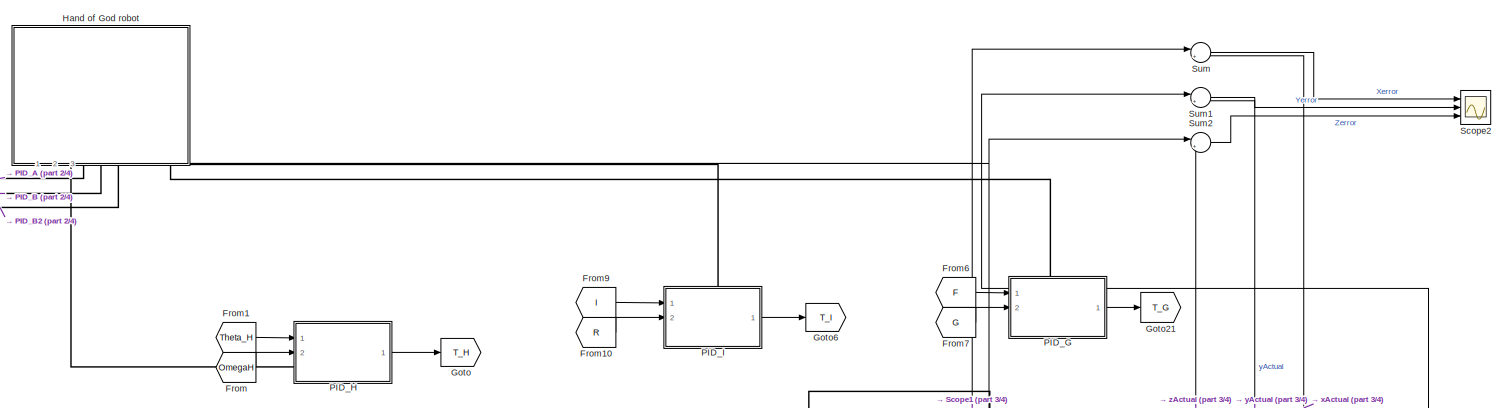
[diagram: root canvas - part 1/4, top center region]
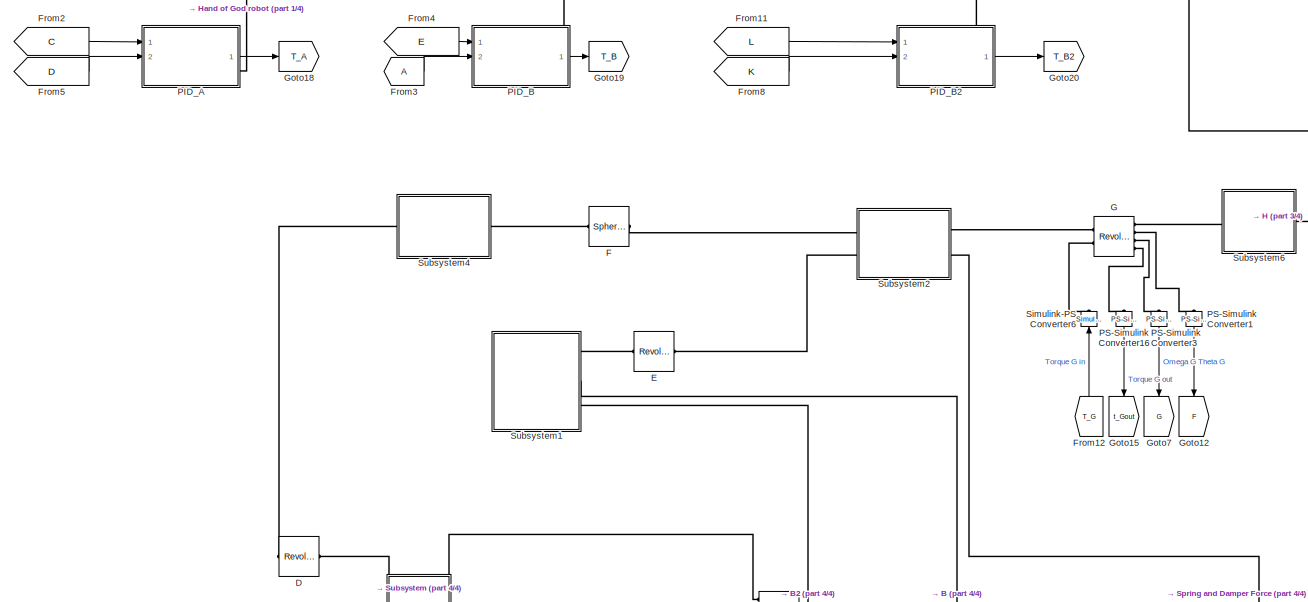
[diagram: root canvas - part 2/4, middle left region]
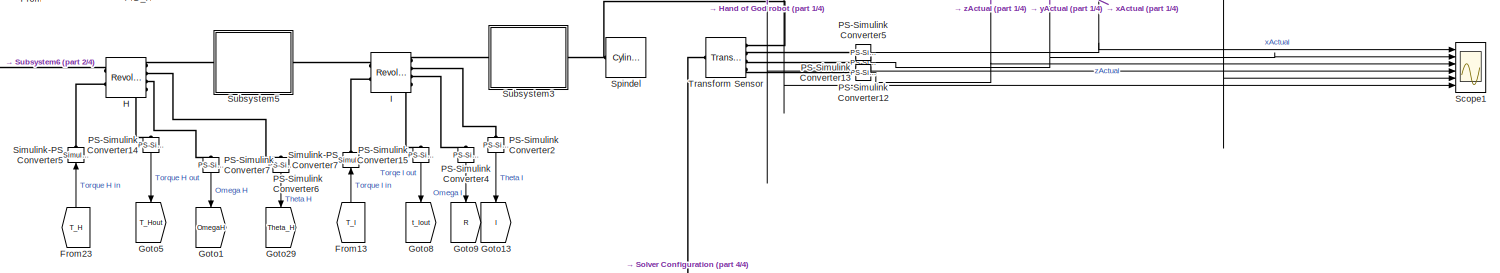
[diagram: root canvas - part 3/4, middle right region]
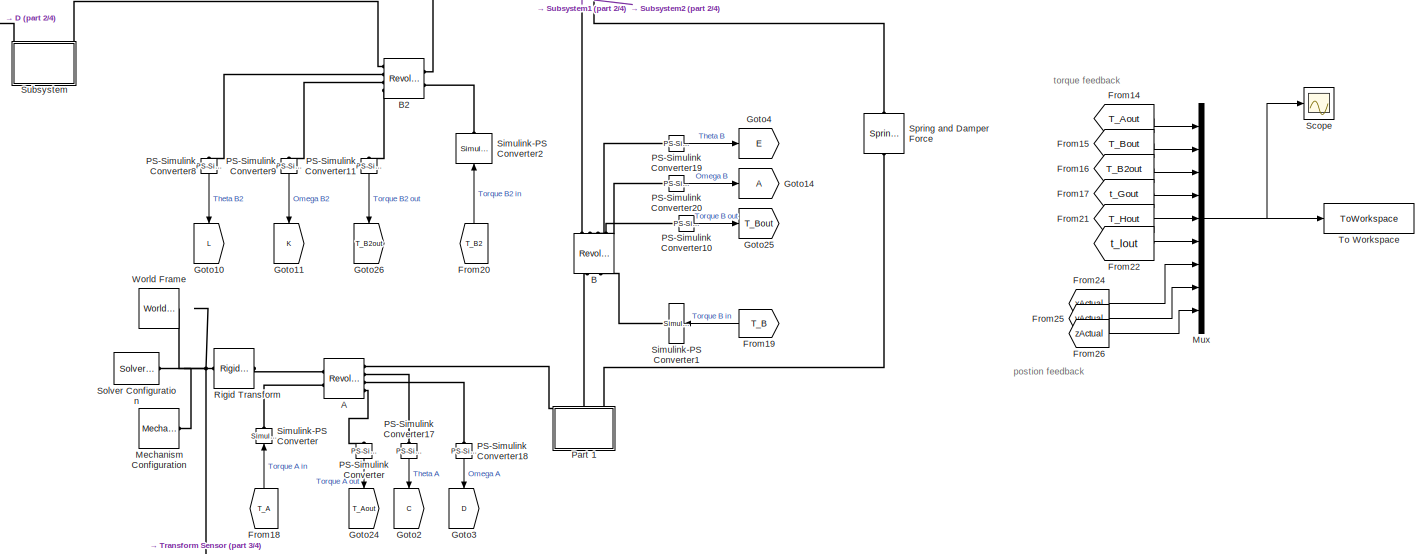
[diagram: root canvas - part 4/4, bottom center region]
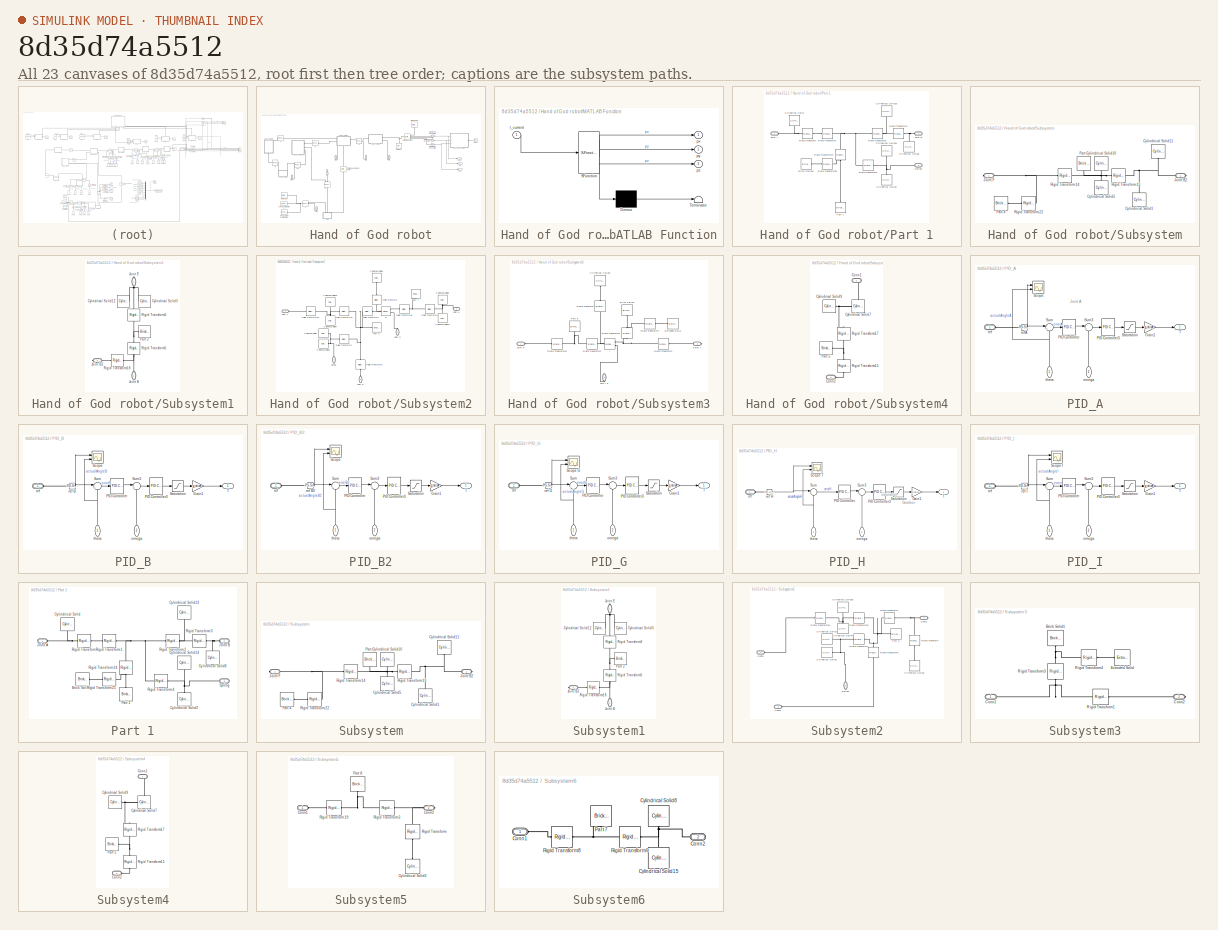
[diagram: thumbnail index - all 23 canvases of the model, root first then tree order]
MODEL slx_8d35d74a5512
KIND model
CONFIG AbsTol = auto
CONFIG EnableMultiTasking = off
CONFIG FixedStep = auto
CONFIG MaxStep = auto
CONFIG MinStep = auto
CONFIG RelTol = 1e-3
CONFIG SampleTimeConstraint = Unconstrained
CONFIG SolverName = VariableStepAuto
CONFIG StartTime = 0.0
CONFIG StopTime = 4
BLOCK [Reference] A  REF=sm_lib/Joints/Revolute Joint
  Ports = [0, 0, 0, 0, 0, 2, 4]
  SourceBlock = sm_lib/Joints/Revolute Joint
  SourceProductBaseCode = MS
  SourceType = Revolute Joint
BLOCK [Reference] B  REF=sm_lib/Joints/Revolute Joint
  NameLocation = right
  Ports = [0, 0, 0, 0, 0, 2, 4]
  SourceBlock = sm_lib/Joints/Revolute Joint
  SourceProductBaseCode = MS
  SourceType = Revolute Joint
BLOCK [Reference] B2  REF=sm_lib/Joints/Revolute Joint
  NameLocation = top
  Ports = [0, 0, 0, 0, 0, 2, 4]
  SourceBlock = sm_lib/Joints/Revolute Joint
  SourceProductBaseCode = MS
  SourceType = Revolute Joint
BLOCK [Reference] D  REF=sm_lib/Joints/Revolute Joint
  NameLocation = top
  Ports = [0, 0, 0, 0, 0, 1, 1]
  SourceBlock = sm_lib/Joints/Revolute Joint
  SourceProductBaseCode = MS
  SourceType = Revolute Joint
BLOCK [Reference] E  REF=sm_lib/Joints/Revolute Joint
  Ports = [0, 0, 0, 0, 0, 1, 1]
  SourceBlock = sm_lib/Joints/Revolute Joint
  SourceProductBaseCode = MS
  SourceType = Revolute Joint
BLOCK [Reference] F  REF=sm_lib/Joints/Spherical
Joint
  Ports = [0, 0, 0, 0, 0, 1, 1]
  SourceBlock = sm_lib/Joints/Spherical\nJoint
  SourceProductBaseCode = MS
  SourceType = Spherical\nJoint
BLOCK [From] From
  GotoTag = OmegaH
BLOCK [From] From1
  GotoTag = Theta_H
BLOCK [From] From10
  GotoTag = R
BLOCK [From] From11
  GotoTag = L
  IconDisplay = Signal name
BLOCK [From] From12
  GotoTag = T_G
  NameLocation = right
BLOCK [From] From13
  GotoTag = T_I
  NameLocation = right
BLOCK [From] From14
  Commented = on
  GotoTag = T_Aout
BLOCK [From] From15
  Commented = on
  GotoTag = T_Bout
BLOCK [From] From16
  Commented = on
  GotoTag = T_B2out
BLOCK [From] From17
  Commented = on
  GotoTag = t_Gout
BLOCK [From] From18
  GotoTag = T_A
  NameLocation = right
BLOCK [From] From19
  GotoTag = T_B
  NameLocation = top
BLOCK [From] From2
  GotoTag = C
  IconDisplay = Signal name
BLOCK [From] From20
  GotoTag = T_B2
  NameLocation = right
BLOCK [From] From21
  Commented = on
  GotoTag = T_Hout
BLOCK [From] From22
  Commented = on
  GotoTag = t_Iout
BLOCK [From] From23
  GotoTag = T_H
  NameLocation = right
BLOCK [From] From24
  Commented = on
  GotoTag = xActual
BLOCK [From] From25
  Commented = on
  GotoTag = yActual
BLOCK [From] From26
  Commented = on
  GotoTag = zActual
BLOCK [From] From3
BLOCK [From] From4
  GotoTag = E
  IconDisplay = Signal name
BLOCK [From] From5
  GotoTag = D
  IconDisplay = Signal name
BLOCK [From] From6
  GotoTag = F
BLOCK [From] From7
  GotoTag = G
BLOCK [From] From8
  GotoTag = K
  IconDisplay = Signal name
BLOCK [From] From9
  GotoTag = I
BLOCK [Reference] G  REF=sm_lib/Joints/Revolute Joint
  Ports = [0, 0, 0, 0, 0, 2, 4]
  SourceBlock = sm_lib/Joints/Revolute Joint
  SourceProductBaseCode = MS
  SourceType = Revolute Joint
BLOCK [Goto] Goto
  GotoTag = T_H
BLOCK [Goto] Goto1
  GotoTag = OmegaH
  NameLocation = left
BLOCK [Goto] Goto10
  GotoTag = L
  NameLocation = left
BLOCK [Goto] Goto11
  GotoTag = K
  NameLocation = left
BLOCK [Goto] Goto12
  GotoTag = F
  NameLocation = left
BLOCK [Goto] Goto13
  GotoTag = I
  NameLocation = left
BLOCK [Goto] Goto14
BLOCK [Goto] Goto15
  GotoTag = t_Gout
  NameLocation = left
BLOCK [Goto] Goto18
  GotoTag = T_A
BLOCK [Goto] Goto19
  GotoTag = T_B
BLOCK [Goto] Goto2
  GotoTag = C
  NameLocation = left
BLOCK [Goto] Goto20
  GotoTag = T_B2
BLOCK [Goto] Goto21
  GotoTag = T_G
BLOCK [Goto] Goto24
  GotoTag = T_Aout
  NameLocation = left
BLOCK [Goto] Goto25
  GotoTag = T_Bout
BLOCK [Goto] Goto26
  GotoTag = T_B2out
  NameLocation = left
BLOCK [Goto] Goto29
  GotoTag = Theta_H
  NameLocation = left
BLOCK [Goto] Goto3
  GotoTag = D
  NameLocation = left
BLOCK [Goto] Goto4
  GotoTag = E
BLOCK [Goto] Goto5
  GotoTag = T_Hout
  NameLocation = left
BLOCK [Goto] Goto6
  GotoTag = T_I
BLOCK [Goto] Goto7
  GotoTag = G
  NameLocation = left
BLOCK [Goto] Goto8
  GotoTag = t_Iout
  NameLocation = left
BLOCK [Goto] Goto9
  GotoTag = R
BLOCK [Reference] H  REF=sm_lib/Joints/Revolute Joint
  Ports = [0, 0, 0, 0, 0, 2, 4]
  SourceBlock = sm_lib/Joints/Revolute Joint
  SourceProductBaseCode = MS
  SourceType = Revolute Joint
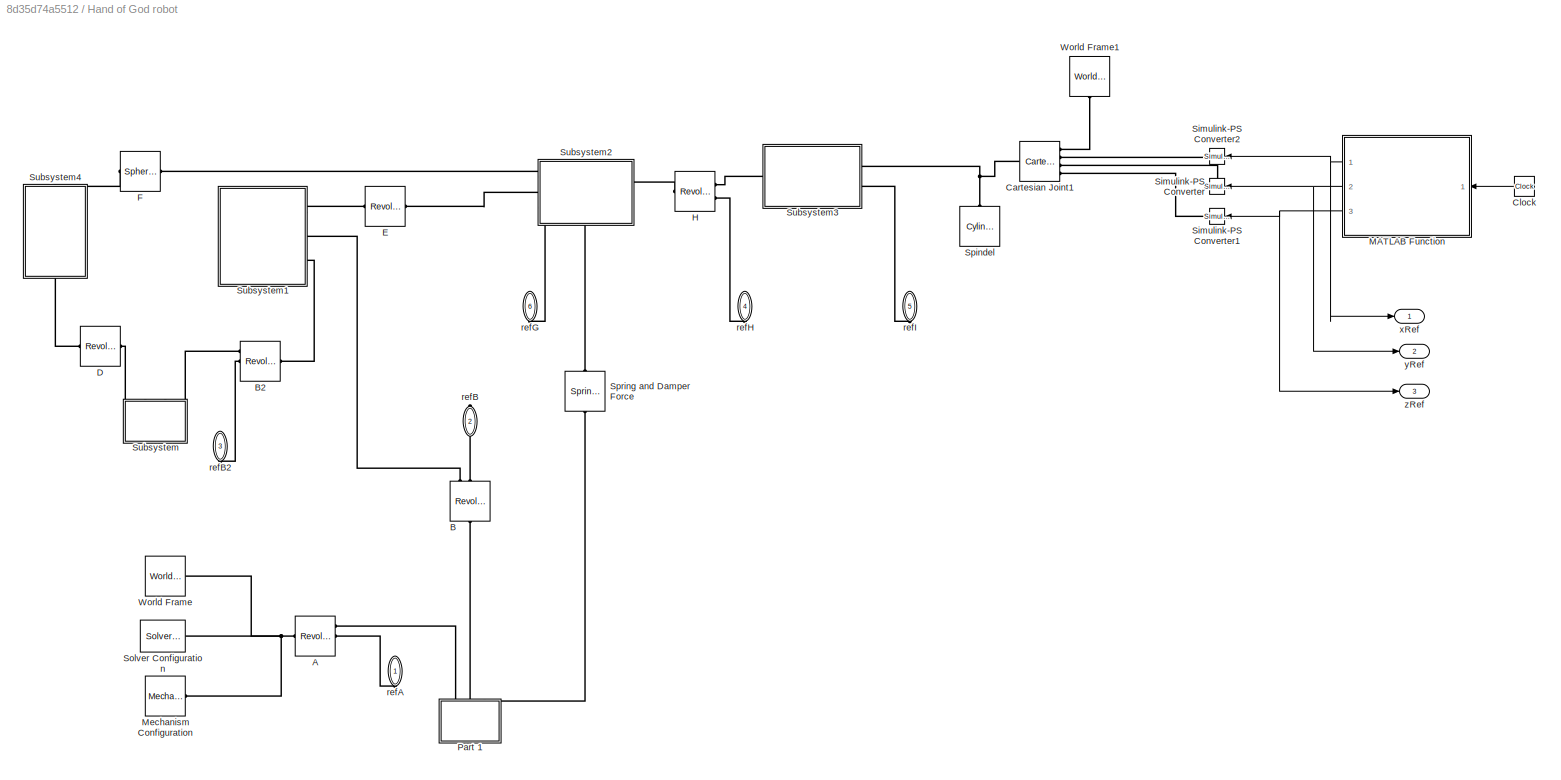
BLOCK [SubSystem] Hand of God robot
  NameLocation = left
  PortSchema = {"entries":[{"content":{"sides":[{"content":{"connectorIds":[]},"type":"ConnectorPlacement.EquallySpacedRectSide","uuid":"2da66bc7-d9c9-40f7-a607-c496d8ba411d"},{"content":{"connectorIds":["RConn1","RConn2","RConn3","RConn4","RConn5","RConn6"],"side":"RIGHT"},"type":"ConnectorPlacement.EquallySpacedRectSide","uuid":"43301214-e3a9-4c79-a69b-8ea01f3b52fc"},{"content":{"connectorIds":[],"side":"TOP"}...<+446ch>
  Ports = [0, 3, 0, 0, 0, 0, 6]
  RequestExecContextInheritance = off
BLOCK [Reference] Hand of God robot/A  REF=sm_lib/Joints/Revolute Joint
  Ports = [0, 0, 0, 0, 0, 1, 3]
  SourceBlock = sm_lib/Joints/Revolute Joint
  SourceProductBaseCode = MS
  SourceType = Revolute Joint
BLOCK [Reference] Hand of God robot/B  REF=sm_lib/Joints/Revolute Joint
  NameLocation = right
  Ports = [0, 0, 0, 0, 0, 1, 3]
  SourceBlock = sm_lib/Joints/Revolute Joint
  SourceProductBaseCode = MS
  SourceType = Revolute Joint
BLOCK [Reference] Hand of God robot/B2  REF=sm_lib/Joints/Revolute Joint
  NameLocation = top
  Ports = [0, 0, 0, 0, 0, 1, 3]
  SourceBlock = sm_lib/Joints/Revolute Joint
  SourceProductBaseCode = MS
  SourceType = Revolute Joint
BLOCK [Reference] Hand of God robot/Cartesian Joint1  REF=sm_lib/Joints/Cartesian
Joint
  NameLocation = top
  Ports = [0, 0, 0, 0, 0, 4, 1]
  SourceBlock = sm_lib/Joints/Cartesian\nJoint
  SourceProductBaseCode = MS
  SourceType = Cartesian\nJoint
BLOCK [Clock] Hand of God robot/Clock
  NameLocation = top
BLOCK [Reference] Hand of God robot/D  REF=sm_lib/Joints/Revolute Joint
  NameLocation = top
  Ports = [0, 0, 0, 0, 0, 1, 1]
  SourceBlock = sm_lib/Joints/Revolute Joint
  SourceProductBaseCode = MS
  SourceType = Revolute Joint
BLOCK [Reference] Hand of God robot/E  REF=sm_lib/Joints/Revolute Joint
  Ports = [0, 0, 0, 0, 0, 1, 1]
  SourceBlock = sm_lib/Joints/Revolute Joint
  SourceProductBaseCode = MS
  SourceType = Revolute Joint
BLOCK [Reference] Hand of God robot/F  REF=sm_lib/Joints/Spherical
Joint
  Ports = [0, 0, 0, 0, 0, 1, 1]
  SourceBlock = sm_lib/Joints/Spherical\nJoint
  SourceProductBaseCode = MS
  SourceType = Spherical\nJoint
BLOCK [Reference] Hand of God robot/H  REF=sm_lib/Joints/Revolute Joint
  Ports = [0, 0, 0, 0, 0, 1, 2]
  SourceBlock = sm_lib/Joints/Revolute Joint
  SourceProductBaseCode = MS
  SourceType = Revolute Joint
BLOCK [SubSystem] Hand of God robot/MATLAB Function
  ErrorFcn = Stateflow.Translate.translate
  NameLocation = top
  PermitHierarchicalResolution = ExplicitOnly
  Ports = [1, 3]
  RequestExecContextInheritance = off
  SFBlockType = MATLAB Function
  TreatAsAtomicUnit = on
BLOCK [Demux] Hand of God robot/MATLAB Function/ Demux 
  Outputs = 1
  Ports = [1, 1]
BLOCK [S-Function] Hand of God robot/MATLAB Function/ SFunction 
  EnableBusSupport = on
  FunctionName = sf_sfun
  PortCounts = [1 4]
  Ports = [1, 4]
  SFcnIsStateOwnerBlock = off
  SFunctionDeploymentMode = off
  Tag = Stateflow S-Function 1
BLOCK [Terminator] Hand of God robot/MATLAB Function/ Terminator 
BLOCK [Outport] Hand of God robot/MATLAB Function/px
  VectorParamsAs1DForOutWhenUnconnected = off
BLOCK [Outport] Hand of God robot/MATLAB Function/py
  Port = 2
  VectorParamsAs1DForOutWhenUnconnected = off
BLOCK [Outport] Hand of God robot/MATLAB Function/pz
  Port = 3
  VectorParamsAs1DForOutWhenUnconnected = off
BLOCK [Inport] Hand of God robot/MATLAB Function/t_current
BLOCK [Reference] Hand of God robot/Mechanism Configuration  REF=sm_lib/Utilities/Mechanism
Configuration
  Ports = [0, 0, 0, 0, 0, 0, 1]
  SourceBlock = sm_lib/Utilities/Mechanism\nConfiguration
  SourceProductBaseCode = MS
  SourceType = Mechanism\nConfiguration
BLOCK [SubSystem] Hand of God robot/Part 1
  NameLocation = left
  Ports = [0, 0, 0, 0, 0, 3]
  RequestExecContextInheritance = off
BLOCK [Reference] Hand of God robot/Part 1/Brick Solid10  REF=sm_lib/Body Elements/Brick Solid
  Ports = [0, 0, 0, 0, 0, 0, 1]
  SourceBlock = sm_lib/Body Elements/Brick Solid
  SourceProductBaseCode = MS
  SourceType = Brick Solid
BLOCK [Reference] Hand of God robot/Part 1/Cylindrical Solid  REF=sm_lib/Body Elements/Cylindrical Solid
  NameLocation = left
  Ports = [0, 0, 0, 0, 0, 0, 1]
  SourceBlock = sm_lib/Body Elements/Cylindrical Solid
  SourceProductBaseCode = MS
  SourceType = Cylindrical Solid
BLOCK [Reference] Hand of God robot/Part 1/Cylindrical Solid13  REF=sm_lib/Body Elements/Cylindrical Solid
  NameLocation = left
  Ports = [0, 0, 0, 0, 0, 0, 1]
  SourceBlock = sm_lib/Body Elements/Cylindrical Solid
  SourceProductBaseCode = MS
  SourceType = Cylindrical Solid
BLOCK [Reference] Hand of God robot/Part 1/Cylindrical Solid14  REF=sm_lib/Body Elements/Cylindrical Solid
  NameLocation = left
  Ports = [0, 0, 0, 0, 0, 0, 1]
  SourceBlock = sm_lib/Body Elements/Cylindrical Solid
  SourceProductBaseCode = MS
  SourceType = Cylindrical Solid
BLOCK [Reference] Hand of God robot/Part 1/Cylindrical Solid2  REF=sm_lib/Body Elements/Cylindrical Solid
  NameLocation = right
  Ports = [0, 0, 0, 0, 0, 0, 1]
  SourceBlock = sm_lib/Body Elements/Cylindrical Solid
  SourceProductBaseCode = MS
  SourceType = Cylindrical Solid
BLOCK [Reference] Hand of God robot/Part 1/Cylindrical Solid6  REF=sm_lib/Body Elements/Cylindrical Solid
  NameLocation = right
  Ports = [0, 0, 0, 0, 0, 0, 1]
  SourceBlock = sm_lib/Body Elements/Cylindrical Solid
  SourceProductBaseCode = MS
  SourceType = Cylindrical Solid
BLOCK [PMIOPort] Hand of God robot/Part 1/Joint A
  Side = Left
BLOCK [PMIOPort] Hand of God robot/Part 1/Joint B
  NameLocation = top
  Port = 2
  Side = Left
BLOCK [Reference] Hand of God robot/Part 1/Part 1  REF=sm_lib/Body Elements/Brick Solid
  NameLocation = right
  Ports = [0, 0, 0, 0, 0, 0, 1]
  SourceBlock = sm_lib/Body Elements/Brick Solid
  SourceProductBaseCode = MS
  SourceType = Brick Solid
BLOCK [Reference] Hand of God robot/Part 1/Rigid Transform  REF=sm_lib/Frames and
Transforms/Rigid
Transform
  Ports = [0, 0, 0, 0, 0, 1, 1]
  SourceBlock = sm_lib/Frames and\nTransforms/Rigid\nTransform
  SourceProductBaseCode = MS
  SourceType = Rigid\nTransform
BLOCK [Reference] Hand of God robot/Part 1/Rigid Transform1  REF=sm_lib/Frames and
Transforms/Rigid
Transform
  Ports = [0, 0, 0, 0, 0, 1, 1]
  SourceBlock = sm_lib/Frames and\nTransforms/Rigid\nTransform
  SourceProductBaseCode = MS
  SourceType = Rigid\nTransform
BLOCK [Reference] Hand of God robot/Part 1/Rigid Transform2  REF=sm_lib/Frames and
Transforms/Rigid
Transform
  Ports = [0, 0, 0, 0, 0, 1, 1]
  SourceBlock = sm_lib/Frames and\nTransforms/Rigid\nTransform
  SourceProductBaseCode = MS
  SourceType = Rigid\nTransform
BLOCK [Reference] Hand of God robot/Part 1/Rigid Transform24  REF=sm_lib/Frames and
Transforms/Rigid
Transform
  NameLocation = right
  Ports = [0, 0, 0, 0, 0, 1, 1]
  SourceBlock = sm_lib/Frames and\nTransforms/Rigid\nTransform
  SourceProductBaseCode = MS
  SourceType = Rigid\nTransform
BLOCK [Reference] Hand of God robot/Part 1/Rigid Transform25  REF=sm_lib/Frames and
Transforms/Rigid
Transform
  NameLocation = top
  Ports = [0, 0, 0, 0, 0, 1, 1]
  SourceBlock = sm_lib/Frames and\nTransforms/Rigid\nTransform
  SourceProductBaseCode = MS
  SourceType = Rigid\nTransform
BLOCK [Reference] Hand of God robot/Part 1/Rigid Transform3  REF=sm_lib/Frames and
Transforms/Rigid
Transform
  Ports = [0, 0, 0, 0, 0, 1, 1]
  SourceBlock = sm_lib/Frames and\nTransforms/Rigid\nTransform
  SourceProductBaseCode = MS
  SourceType = Rigid\nTransform
BLOCK [Reference] Hand of God robot/Part 1/Rigid Transform4  REF=sm_lib/Frames and
Transforms/Rigid
Transform
  Ports = [0, 0, 0, 0, 0, 1, 1]
  SourceBlock = sm_lib/Frames and\nTransforms/Rigid\nTransform
  SourceProductBaseCode = MS
  SourceType = Rigid\nTransform
BLOCK [PMIOPort] Hand of God robot/Part 1/Spring
  NameLocation = top
  Port = 3
  Side = Left
BLOCK [Reference] Hand of God robot/Simulink-PS Converter  REF=nesl_utility/Simulink-PS
Converter
  NameLocation = top
  Ports = [1, 0, 0, 0, 0, 0, 1]
  SourceBlock = nesl_utility/Simulink-PS\nConverter
  SourceProductBaseCode = SS,PW,VE
  SourceType = Simulink-PS\nConverter
BLOCK [Reference] Hand of God robot/Simulink-PS Converter1  REF=nesl_utility/Simulink-PS
Converter
  NameLocation = top
  Ports = [1, 0, 0, 0, 0, 0, 1]
  SourceBlock = nesl_utility/Simulink-PS\nConverter
  SourceProductBaseCode = SS,PW,VE
  SourceType = Simulink-PS\nConverter
BLOCK [Reference] Hand of God robot/Simulink-PS Converter2  REF=nesl_utility/Simulink-PS
Converter
  NameLocation = top
  Ports = [1, 0, 0, 0, 0, 0, 1]
  SourceBlock = nesl_utility/Simulink-PS\nConverter
  SourceProductBaseCode = SS,PW,VE
  SourceType = Simulink-PS\nConverter
BLOCK [Reference] Hand of God robot/Solver Configuration  REF=nesl_utility/Solver
Configuration
  Ports = [0, 0, 0, 0, 0, 0, 1]
  SourceBlock = nesl_utility/Solver\nConfiguration
  SourceProductBaseCode = SS,PW,VE
  SourceType = Solver\nConfiguration
BLOCK [Reference] Hand of God robot/Spindel  REF=sm_lib/Body Elements/Cylindrical Solid
  NameLocation = right
  Ports = [0, 0, 0, 0, 0, 0, 1]
  SourceBlock = sm_lib/Body Elements/Cylindrical Solid
  SourceProductBaseCode = MS
  SourceType = Cylindrical Solid
BLOCK [Reference] Hand of God robot/Spring and Damper Force  REF=sm_lib/Forces and
Torques/Spring and
Damper Force
  NameLocation = right
  Ports = [0, 0, 0, 0, 0, 1, 1]
  SourceBlock = sm_lib/Forces and\nTorques/Spring and\nDamper Force
  SourceProductBaseCode = MS
  SourceType = Spring and\nDamper Force
BLOCK [SubSystem] Hand of God robot/Subsystem
  NameLocation = right
  Ports = [0, 0, 0, 0, 0, 0, 2]
  RequestExecContextInheritance = off
BLOCK [Reference] Hand of God robot/Subsystem/Cylindrical Solid1  REF=sm_lib/Body Elements/Cylindrical Solid
  NameLocation = right
  Ports = [0, 0, 0, 0, 0, 0, 1]
  SourceBlock = sm_lib/Body Elements/Cylindrical Solid
  SourceProductBaseCode = MS
  SourceType = Cylindrical Solid
BLOCK [Reference] Hand of God robot/Subsystem/Cylindrical Solid10  REF=sm_lib/Body Elements/Cylindrical Solid
  NameLocation = left
  Ports = [0, 0, 0, 0, 0, 0, 1]
  SourceBlock = sm_lib/Body Elements/Cylindrical Solid
  SourceProductBaseCode = MS
  SourceType = Cylindrical Solid
BLOCK [Reference] Hand of God robot/Subsystem/Cylindrical Solid11  REF=sm_lib/Body Elements/Cylindrical Solid
  Ports = [0, 0, 0, 0, 0, 0, 1]
  SourceBlock = sm_lib/Body Elements/Cylindrical Solid
  SourceProductBaseCode = MS
  SourceType = Cylindrical Solid
BLOCK [Reference] Hand of God robot/Subsystem/Cylindrical Solid5  REF=sm_lib/Body Elements/Cylindrical Solid
  NameLocation = right
  Ports = [0, 0, 0, 0, 0, 0, 1]
  SourceBlock = sm_lib/Body Elements/Cylindrical Solid
  SourceProductBaseCode = MS
  SourceType = Cylindrical Solid
BLOCK [PMIOPort] Hand of God robot/Subsystem/Joint B2
  Port = 2
  Side = Right
BLOCK [PMIOPort] Hand of God robot/Subsystem/Joint F
  NameLocation = top
  Side = Right
BLOCK [Reference] Hand of God robot/Subsystem/Part 3  REF=sm_lib/Body Elements/Brick Solid
  NameLocation = left
  Ports = [0, 0, 0, 0, 0, 0, 1]
  SourceBlock = sm_lib/Body Elements/Brick Solid
  SourceProductBaseCode = MS
  SourceType = Brick Solid
BLOCK [Reference] Hand of God robot/Subsystem/Part 4  REF=sm_lib/Body Elements/Brick Solid
  Ports = [0, 0, 0, 0, 0, 0, 1]
  SourceBlock = sm_lib/Body Elements/Brick Solid
  SourceProductBaseCode = MS
  SourceType = Brick Solid
BLOCK [Reference] Hand of God robot/Subsystem/Rigid Transform13  REF=sm_lib/Frames and
Transforms/Rigid
Transform
  NameLocation = top
  Ports = [0, 0, 0, 0, 0, 1, 1]
  SourceBlock = sm_lib/Frames and\nTransforms/Rigid\nTransform
  SourceProductBaseCode = MS
  SourceType = Rigid\nTransform
BLOCK [Reference] Hand of God robot/Subsystem/Rigid Transform14  REF=sm_lib/Frames and
Transforms/Rigid
Transform
  NameLocation = top
  Ports = [0, 0, 0, 0, 0, 1, 1]
  SourceBlock = sm_lib/Frames and\nTransforms/Rigid\nTransform
  SourceProductBaseCode = MS
  SourceType = Rigid\nTransform
BLOCK [Reference] Hand of God robot/Subsystem/Rigid Transform22  REF=sm_lib/Frames and
Transforms/Rigid
Transform
  NameLocation = top
  Ports = [0, 0, 0, 0, 0, 1, 1]
  SourceBlock = sm_lib/Frames and\nTransforms/Rigid\nTransform
  SourceProductBaseCode = MS
  SourceType = Rigid\nTransform
BLOCK [SubSystem] Hand of God robot/Subsystem1
  Ports = [0, 0, 0, 0, 0, 0, 3]
  RequestExecContextInheritance = off
BLOCK [Reference] Hand of God robot/Subsystem1/Cylindrical Solid12  REF=sm_lib/Body Elements/Cylindrical Solid
  Ports = [0, 0, 0, 0, 0, 0, 1]
  SourceBlock = sm_lib/Body Elements/Cylindrical Solid
  SourceProductBaseCode = MS
  SourceType = Cylindrical Solid
BLOCK [Reference] Hand of God robot/Subsystem1/Cylindrical Solid3  REF=sm_lib/Body Elements/Cylindrical Solid
  NameLocation = top
  Ports = [0, 0, 0, 0, 0, 0, 1]
  SourceBlock = sm_lib/Body Elements/Cylindrical Solid
  SourceProductBaseCode = MS
  SourceType = Cylindrical Solid
BLOCK [PMIOPort] Hand of God robot/Subsystem1/Joint B
  NameLocation = right
  Port = 2
  Side = Right
BLOCK [PMIOPort] Hand of God robot/Subsystem1/Joint B2
  Port = 3
  Side = Right
BLOCK [PMIOPort] Hand of God robot/Subsystem1/Joint E
  NameLocation = right
  Side = Right
BLOCK [Reference] Hand of God robot/Subsystem1/Part 2  REF=sm_lib/Body Elements/Brick Solid
  NameLocation = top
  Ports = [0, 0, 0, 0, 0, 0, 1]
  SourceBlock = sm_lib/Body Elements/Brick Solid
  SourceProductBaseCode = MS
  SourceType = Brick Solid
BLOCK [Reference] Hand of God robot/Subsystem1/Rigid Transform18  REF=sm_lib/Frames and
Transforms/Rigid
Transform
  NameLocation = top
  Ports = [0, 0, 0, 0, 0, 1, 1]
  SourceBlock = sm_lib/Frames and\nTransforms/Rigid\nTransform
  SourceProductBaseCode = MS
  SourceType = Rigid\nTransform
BLOCK [Reference] Hand of God robot/Subsystem1/Rigid Transform3  REF=sm_lib/Frames and
Transforms/Rigid
Transform
  NameLocation = right
  Ports = [0, 0, 0, 0, 0, 1, 1]
  SourceBlock = sm_lib/Frames and\nTransforms/Rigid\nTransform
  SourceProductBaseCode = MS
  SourceType = Rigid\nTransform
BLOCK [Reference] Hand of God robot/Subsystem1/Rigid Transform5  REF=sm_lib/Frames and
Transforms/Rigid
Transform
  NameLocation = right
  Ports = [0, 0, 0, 0, 0, 1, 1]
  SourceBlock = sm_lib/Frames and\nTransforms/Rigid\nTransform
  SourceProductBaseCode = MS
  SourceType = Rigid\nTransform
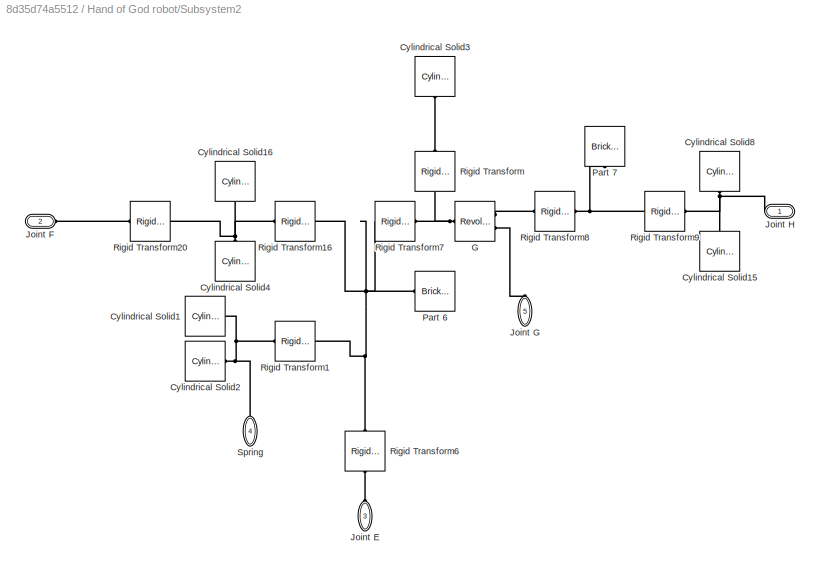
BLOCK [SubSystem] Hand of God robot/Subsystem2
  PortSchema = {"entries":[{"content":{"sides":[{"content":{"connectorIds":["LConn1","LConn2","LConn3"]},"type":"ConnectorPlacement.EquallySpacedRectSide","uuid":"da7f6e69-6578-4727-91f4-7ed436fea6bc"},{"content":{"connectorIds":["RConn1"],"side":"RIGHT"},"type":"ConnectorPlacement.EquallySpacedRectSide","uuid":"90b1d93d-cac2-41cd-9d62-161eb0db7bf2"},{"content":{"connectorIds":[],"side":"TOP"},"type":"ConnectorP...<+415ch>
  Ports = [0, 0, 0, 0, 0, 3, 2]
  RequestExecContextInheritance = off
BLOCK [Reference] Hand of God robot/Subsystem2/Cylindrical Solid1  REF=sm_lib/Body Elements/Cylindrical Solid
  Ports = [0, 0, 0, 0, 0, 0, 1]
  SourceBlock = sm_lib/Body Elements/Cylindrical Solid
  SourceProductBaseCode = MS
  SourceType = Cylindrical Solid
BLOCK [Reference] Hand of God robot/Subsystem2/Cylindrical Solid15  REF=sm_lib/Body Elements/Cylindrical Solid
  NameLocation = right
  Ports = [0, 0, 0, 0, 0, 0, 1]
  SourceBlock = sm_lib/Body Elements/Cylindrical Solid
  SourceProductBaseCode = MS
  SourceType = Cylindrical Solid
BLOCK [Reference] Hand of God robot/Subsystem2/Cylindrical Solid16  REF=sm_lib/Body Elements/Cylindrical Solid
  NameLocation = left
  Ports = [0, 0, 0, 0, 0, 0, 1]
  SourceBlock = sm_lib/Body Elements/Cylindrical Solid
  SourceProductBaseCode = MS
  SourceType = Cylindrical Solid
BLOCK [Reference] Hand of God robot/Subsystem2/Cylindrical Solid2  REF=sm_lib/Body Elements/Cylindrical Solid
  Ports = [0, 0, 0, 0, 0, 0, 1]
  SourceBlock = sm_lib/Body Elements/Cylindrical Solid
  SourceProductBaseCode = MS
  SourceType = Cylindrical Solid
BLOCK [Reference] Hand of God robot/Subsystem2/Cylindrical Solid3  REF=sm_lib/Body Elements/Cylindrical Solid
  NameLocation = left
  Ports = [0, 0, 0, 0, 0, 0, 1]
  SourceBlock = sm_lib/Body Elements/Cylindrical Solid
  SourceProductBaseCode = MS
  SourceType = Cylindrical Solid
BLOCK [Reference] Hand of God robot/Subsystem2/Cylindrical Solid4  REF=sm_lib/Body Elements/Cylindrical Solid
  NameLocation = right
  Ports = [0, 0, 0, 0, 0, 0, 1]
  SourceBlock = sm_lib/Body Elements/Cylindrical Solid
  SourceProductBaseCode = MS
  SourceType = Cylindrical Solid
BLOCK [Reference] Hand of God robot/Subsystem2/Cylindrical Solid8  REF=sm_lib/Body Elements/Cylindrical Solid
  NameLocation = left
  Ports = [0, 0, 0, 0, 0, 0, 1]
  SourceBlock = sm_lib/Body Elements/Cylindrical Solid
  SourceProductBaseCode = MS
  SourceType = Cylindrical Solid
BLOCK [Reference] Hand of God robot/Subsystem2/G  REF=sm_lib/Joints/Revolute Joint
  Ports = [0, 0, 0, 0, 0, 1, 2]
  SourceBlock = sm_lib/Joints/Revolute Joint
  SourceProductBaseCode = MS
  SourceType = Revolute Joint
BLOCK [PMIOPort] Hand of God robot/Subsystem2/Joint E
  NameLocation = right
  Port = 3
  Side = Left
BLOCK [PMIOPort] Hand of God robot/Subsystem2/Joint F
  Port = 2
  Side = Left
BLOCK [PMIOPort] Hand of God robot/Subsystem2/Joint G
  NameLocation = right
  Port = 5
  Side = Left
BLOCK [PMIOPort] Hand of God robot/Subsystem2/Joint H
  Side = Right
BLOCK [Reference] Hand of God robot/Subsystem2/Part 6  REF=sm_lib/Body Elements/Brick Solid
  NameLocation = top
  Ports = [0, 0, 0, 0, 0, 0, 1]
  SourceBlock = sm_lib/Body Elements/Brick Solid
  SourceProductBaseCode = MS
  SourceType = Brick Solid
BLOCK [Reference] Hand of God robot/Subsystem2/Part 7  REF=sm_lib/Body Elements/Brick Solid
  NameLocation = left
  Ports = [0, 0, 0, 0, 0, 0, 1]
  SourceBlock = sm_lib/Body Elements/Brick Solid
  SourceProductBaseCode = MS
  SourceType = Brick Solid
BLOCK [Reference] Hand of God robot/Subsystem2/Rigid Transform  REF=sm_lib/Frames and
Transforms/Rigid
Transform
  NameLocation = right
  Ports = [0, 0, 0, 0, 0, 1, 1]
  SourceBlock = sm_lib/Frames and\nTransforms/Rigid\nTransform
  SourceProductBaseCode = MS
  SourceType = Rigid\nTransform
BLOCK [Reference] Hand of God robot/Subsystem2/Rigid Transform1  REF=sm_lib/Frames and
Transforms/Rigid
Transform
  NameLocation = top
  Ports = [0, 0, 0, 0, 0, 1, 1]
  SourceBlock = sm_lib/Frames and\nTransforms/Rigid\nTransform
  SourceProductBaseCode = MS
  SourceType = Rigid\nTransform
BLOCK [Reference] Hand of God robot/Subsystem2/Rigid Transform16  REF=sm_lib/Frames and
Transforms/Rigid
Transform
  Ports = [0, 0, 0, 0, 0, 1, 1]
  SourceBlock = sm_lib/Frames and\nTransforms/Rigid\nTransform
  SourceProductBaseCode = MS
  SourceType = Rigid\nTransform
BLOCK [Reference] Hand of God robot/Subsystem2/Rigid Transform20  REF=sm_lib/Frames and
Transforms/Rigid
Transform
  Ports = [0, 0, 0, 0, 0, 1, 1]
  SourceBlock = sm_lib/Frames and\nTransforms/Rigid\nTransform
  SourceProductBaseCode = MS
  SourceType = Rigid\nTransform
BLOCK [Reference] Hand of God robot/Subsystem2/Rigid Transform6  REF=sm_lib/Frames and
Transforms/Rigid
Transform
  NameLocation = right
  Ports = [0, 0, 0, 0, 0, 1, 1]
  SourceBlock = sm_lib/Frames and\nTransforms/Rigid\nTransform
  SourceProductBaseCode = MS
  SourceType = Rigid\nTransform
BLOCK [Reference] Hand of God robot/Subsystem2/Rigid Transform7  REF=sm_lib/Frames and
Transforms/Rigid
Transform
  Ports = [0, 0, 0, 0, 0, 1, 1]
  SourceBlock = sm_lib/Frames and\nTransforms/Rigid\nTransform
  SourceProductBaseCode = MS
  SourceType = Rigid\nTransform
BLOCK [Reference] Hand of God robot/Subsystem2/Rigid Transform8  REF=sm_lib/Frames and
Transforms/Rigid
Transform
  Ports = [0, 0, 0, 0, 0, 1, 1]
  SourceBlock = sm_lib/Frames and\nTransforms/Rigid\nTransform
  SourceProductBaseCode = MS
  SourceType = Rigid\nTransform
BLOCK [Reference] Hand of God robot/Subsystem2/Rigid Transform9  REF=sm_lib/Frames and
Transforms/Rigid
Transform
  Ports = [0, 0, 0, 0, 0, 1, 1]
  SourceBlock = sm_lib/Frames and\nTransforms/Rigid\nTransform
  SourceProductBaseCode = MS
  SourceType = Rigid\nTransform
BLOCK [PMIOPort] Hand of God robot/Subsystem2/Spring
  NameLocation = left
  Port = 4
  Side = Right
BLOCK [SubSystem] Hand of God robot/Subsystem3
  Ports = [0, 0, 0, 0, 0, 1, 2]
  RequestExecContextInheritance = off
BLOCK [Reference] Hand of God robot/Subsystem3/Brick Solid1  REF=sm_lib/Body Elements/Brick Solid
  NameLocation = left
  Ports = [0, 0, 0, 0, 0, 0, 1]
  SourceBlock = sm_lib/Body Elements/Brick Solid
  SourceProductBaseCode = MS
  SourceType = Brick Solid
BLOCK [Reference] Hand of God robot/Subsystem3/Cylindrical Solid3  REF=sm_lib/Body Elements/Cylindrical Solid
  NameLocation = left
  Ports = [0, 0, 0, 0, 0, 0, 1]
  SourceBlock = sm_lib/Body Elements/Cylindrical Solid
  SourceProductBaseCode = MS
  SourceType = Cylindrical Solid
BLOCK [Reference] Hand of God robot/Subsystem3/Extruded Solid  REF=sm_lib/Body Elements/Extruded Solid
  NameLocation = top
  Ports = [0, 0, 0, 0, 0, 0, 1]
  SourceBlock = sm_lib/Body Elements/Extruded Solid
  SourceProductBaseCode = MS
  SourceType = Extruded Solid
BLOCK [Reference] Hand of God robot/Subsystem3/I  REF=sm_lib/Joints/Revolute Joint
  Ports = [0, 0, 0, 0, 0, 1, 2]
  SourceBlock = sm_lib/Joints/Revolute Joint
  SourceProductBaseCode = MS
  SourceType = Revolute Joint
BLOCK [PMIOPort] Hand of God robot/Subsystem3/Join I q
  NameLocation = left
  Port = 3
  Side = Right
BLOCK [PMIOPort] Hand of God robot/Subsystem3/Joint H
  Side = Left
BLOCK [Reference] Hand of God robot/Subsystem3/Part 8  REF=sm_lib/Body Elements/Brick Solid
  NameLocation = left
  Ports = [0, 0, 0, 0, 0, 0, 1]
  SourceBlock = sm_lib/Body Elements/Brick Solid
  SourceProductBaseCode = MS
  SourceType = Brick Solid
BLOCK [PMIOPort] Hand of God robot/Subsystem3/Point J
  Port = 2
  Side = Right
BLOCK [Reference] Hand of God robot/Subsystem3/Rigid Transform  REF=sm_lib/Frames and
Transforms/Rigid
Transform
  NameLocation = right
  Ports = [0, 0, 0, 0, 0, 1, 1]
  SourceBlock = sm_lib/Frames and\nTransforms/Rigid\nTransform
  SourceProductBaseCode = MS
  SourceType = Rigid\nTransform
BLOCK [Reference] Hand of God robot/Subsystem3/Rigid Transform1  REF=sm_lib/Frames and
Transforms/Rigid
Transform
  Ports = [0, 0, 0, 0, 0, 1, 1]
  SourceBlock = sm_lib/Frames and\nTransforms/Rigid\nTransform
  SourceProductBaseCode = MS
  SourceType = Rigid\nTransform
BLOCK [Reference] Hand of God robot/Subsystem3/Rigid Transform19  REF=sm_lib/Frames and
Transforms/Rigid
Transform
  Ports = [0, 0, 0, 0, 0, 1, 1]
  SourceBlock = sm_lib/Frames and\nTransforms/Rigid\nTransform
  SourceProductBaseCode = MS
  SourceType = Rigid\nTransform
BLOCK [Reference] Hand of God robot/Subsystem3/Rigid Transform2  REF=sm_lib/Frames and
Transforms/Rigid
Transform
  Ports = [0, 0, 0, 0, 0, 1, 1]
  SourceBlock = sm_lib/Frames and\nTransforms/Rigid\nTransform
  SourceProductBaseCode = MS
  SourceType = Rigid\nTransform
BLOCK [Reference] Hand of God robot/Subsystem3/Rigid Transform3  REF=sm_lib/Frames and
Transforms/Rigid
Transform
  NameLocation = right
  Ports = [0, 0, 0, 0, 0, 1, 1]
  SourceBlock = sm_lib/Frames and\nTransforms/Rigid\nTransform
  SourceProductBaseCode = MS
  SourceType = Rigid\nTransform
BLOCK [Reference] Hand of God robot/Subsystem3/Rigid Transform4  REF=sm_lib/Frames and
Transforms/Rigid
Transform
  NameLocation = top
  Ports = [0, 0, 0, 0, 0, 1, 1]
  SourceBlock = sm_lib/Frames and\nTransforms/Rigid\nTransform
  SourceProductBaseCode = MS
  SourceType = Rigid\nTransform
BLOCK [SubSystem] Hand of God robot/Subsystem4
  NameLocation = right
  Ports = [0, 0, 0, 0, 0, 1, 1]
  RequestExecContextInheritance = off
BLOCK [PMIOPort] Hand of God robot/Subsystem4/Conn1
  Side = Right
BLOCK [PMIOPort] Hand of God robot/Subsystem4/Conn2
  Port = 2
  Side = Left
BLOCK [Reference] Hand of God robot/Subsystem4/Cylindrical Solid7  REF=sm_lib/Body Elements/Cylindrical Solid
  NameLocation = top
  Ports = [0, 0, 0, 0, 0, 0, 1]
  SourceBlock = sm_lib/Body Elements/Cylindrical Solid
  SourceProductBaseCode = MS
  SourceType = Cylindrical Solid
BLOCK [Reference] Hand of God robot/Subsystem4/Cylindrical Solid9  REF=sm_lib/Body Elements/Cylindrical Solid
  Ports = [0, 0, 0, 0, 0, 0, 1]
  SourceBlock = sm_lib/Body Elements/Cylindrical Solid
  SourceProductBaseCode = MS
  SourceType = Cylindrical Solid
BLOCK [Reference] Hand of God robot/Subsystem4/Part 5  REF=sm_lib/Body Elements/Brick Solid
  Ports = [0, 0, 0, 0, 0, 0, 1]
  SourceBlock = sm_lib/Body Elements/Brick Solid
  SourceProductBaseCode = MS
  SourceType = Brick Solid
BLOCK [Reference] Hand of God robot/Subsystem4/Rigid Transform15  REF=sm_lib/Frames and
Transforms/Rigid
Transform
  NameLocation = right
  Ports = [0, 0, 0, 0, 0, 1, 1]
  SourceBlock = sm_lib/Frames and\nTransforms/Rigid\nTransform
  SourceProductBaseCode = MS
  SourceType = Rigid\nTransform
BLOCK [Reference] Hand of God robot/Subsystem4/Rigid Transform17  REF=sm_lib/Frames and
Transforms/Rigid
Transform
  NameLocation = right
  Ports = [0, 0, 0, 0, 0, 1, 1]
  SourceBlock = sm_lib/Frames and\nTransforms/Rigid\nTransform
  SourceProductBaseCode = MS
  SourceType = Rigid\nTransform
BLOCK [Reference] Hand of God robot/World Frame  REF=sm_lib/Frames and
Transforms/World Frame
  Ports = [0, 0, 0, 0, 0, 0, 1]
  SourceBlock = sm_lib/Frames and\nTransforms/World Frame
  SourceProductBaseCode = MS
  SourceType = World Frame
BLOCK [Reference] Hand of God robot/World Frame1  REF=sm_lib/Frames and
Transforms/World Frame
  NameLocation = left
  Ports = [0, 0, 0, 0, 0, 0, 1]
  SourceBlock = sm_lib/Frames and\nTransforms/World Frame
  SourceProductBaseCode = MS
  SourceType = World Frame
BLOCK [PMIOPort] Hand of God robot/refA
  NameLocation = right
  Side = Right
BLOCK [PMIOPort] Hand of God robot/refB
  NameLocation = left
  Port = 2
  Side = Right
BLOCK [PMIOPort] Hand of God robot/refB2
  NameLocation = right
  Port = 3
  Side = Right
BLOCK [PMIOPort] Hand of God robot/refG
  NameLocation = right
  Port = 6
  Side = Right
BLOCK [PMIOPort] Hand of God robot/refH
  NameLocation = right
  Port = 4
  Side = Right
BLOCK [PMIOPort] Hand of God robot/refI
  NameLocation = right
  Port = 5
  Side = Right
BLOCK [Outport] Hand of God robot/xRef
BLOCK [Outport] Hand of God robot/yRef
  Port = 2
BLOCK [Outport] Hand of God robot/zRef
  Port = 3
BLOCK [Reference] I  REF=sm_lib/Joints/Revolute Joint
  Ports = [0, 0, 0, 0, 0, 2, 4]
  SourceBlock = sm_lib/Joints/Revolute Joint
  SourceProductBaseCode = MS
  SourceType = Revolute Joint
BLOCK [Reference] Mechanism Configuration  REF=sm_lib/Utilities/Mechanism
Configuration
  Ports = [0, 0, 0, 0, 0, 0, 1]
  SourceBlock = sm_lib/Utilities/Mechanism\nConfiguration
  SourceProductBaseCode = MS
  SourceType = Mechanism\nConfiguration
BLOCK [Mux] Mux
  Commented = on
  DisplayOption = bar
  Inputs = 9
  Ports = [9, 1]
BLOCK [SubSystem] PID_A
  PortSchema = {"entries":[{"content":{"sides":[{"content":{"connectorIds":["In1","In2"]},"type":"ConnectorPlacement.EquallySpacedRectSide","uuid":"88fb2923-d567-49e7-965d-54b8b92ddc6d"},{"content":{"connectorIds":["Out1"],"side":"RIGHT"},"type":"ConnectorPlacement.EquallySpacedRectSide","uuid":"46ea93fe-e994-4ece-a41c-2bcb9003d689"},{"content":{"connectorIds":["LConn1"],"side":"TOP"},"type":"ConnectorPlacement....<+254ch>  <repeated x6 — deduplicated; at blocks: PID_A, PID_B, PID_B2, PID_G, PID_H, PID_I>
  Ports = [2, 1, 0, 0, 0, 1]
  RequestExecContextInheritance = off
BLOCK [Gain] PID_A/Gain1
  Gain = g_ratioA
BLOCK [Reference] PID_A/PID Controller  REF=pid_lib/PID Controller
  Ports = [1, 1]
  SourceBlock = pid_lib/PID Controller
  SourceProductBaseCode = SL
  SourceType = PID 1dof
BLOCK [Reference] PID_A/PID Controller3  REF=pid_lib/PID Controller
  Ports = [1, 1]
  SourceBlock = pid_lib/PID Controller
  SourceProductBaseCode = SL
  SourceType = PID 1dof
BLOCK [Saturate] PID_A/Saturation
  LowerLimit = -I_max*KmA
  UpperLimit = I_max*KmA
  ZeroCross = off
BLOCK [Scope] PID_A/Scope
  Floating = off
  NumInputPorts = 2
  Ports = [2]
  ScopeSpecificationString = Simulink.scopes.TimeScopeBlockCfg('CurrentConfiguration', extmgr.ConfigurationSet(extmgr.Configuration('Core','General UI',true),extmgr.Configuration('Core','Source UI',true),extmgr.Configuration('Sources','WiredSimulink',true,'DataLoggingVariableName','ScopeData1'),extmgr.Configuration('Visuals','Time Domain',true,'SerializedDisplays',{struct('MinYLimReal','1.38554','MaxYLimReal','1.93498','YLabe...<+1405ch>
BLOCK [Sum] PID_A/Sum
  Inputs = |+-
  Ports = [2, 1]
BLOCK [Sum] PID_A/Sum3
  Inputs = |+-
  Ports = [2, 1]
BLOCK [Outport] PID_A/T
BLOCK [Inport] PID_A/omega
  NameLocation = right
  Port = 2
BLOCK [PMIOPort] PID_A/ref
  Side = Left
BLOCK [Reference] PID_A/refA  REF=nesl_utility/PS-Simulink
Converter
  Ports = [0, 1, 0, 0, 0, 1]
  SourceBlock = nesl_utility/PS-Simulink\nConverter
  SourceProductBaseCode = SS,PW,VE
  SourceType = PS-Simulink\nConverter
BLOCK [Inport] PID_A/theta
  NameLocation = right
BLOCK [SubSystem] PID_B
  Ports = [2, 1, 0, 0, 0, 1]
  RequestExecContextInheritance = off
BLOCK [Gain] PID_B/Gain1
  Gain = g_ratioA
BLOCK [Reference] PID_B/PID Controller  REF=pid_lib/PID Controller
  Ports = [1, 1]
  SourceBlock = pid_lib/PID Controller
  SourceProductBaseCode = SL
  SourceType = PID 1dof
BLOCK [Reference] PID_B/PID Controller3  REF=pid_lib/PID Controller
  Ports = [1, 1]
  SourceBlock = pid_lib/PID Controller
  SourceProductBaseCode = SL
  SourceType = PID 1dof
BLOCK [Saturate] PID_B/Saturation
  LowerLimit = -I_max*KmA
  UpperLimit = I_max*KmA
  ZeroCross = off
BLOCK [Scope] PID_B/Scope
  Floating = off
  NumInputPorts = 2
  Ports = [2]
  ScopeSpecificationString = Simulink.scopes.TimeScopeBlockCfg('CurrentConfiguration', extmgr.ConfigurationSet(extmgr.Configuration('Core','General UI',true),extmgr.Configuration('Core','Source UI',true),extmgr.Configuration('Sources','WiredSimulink',true,'DataLoggingVariableName','ScopeData2'),extmgr.Configuration('Visuals','Time Domain',true,'SerializedDisplays',{struct('MinYLimReal','-0.22316','MaxYLimReal','-0.17459','YLa...<+1429ch>
BLOCK [Sum] PID_B/Sum
  Inputs = |+-
  Ports = [2, 1]
BLOCK [Sum] PID_B/Sum3
  Inputs = |+-
  Ports = [2, 1]
BLOCK [Outport] PID_B/T
BLOCK [Inport] PID_B/omega
  NameLocation = right
  Port = 2
BLOCK [PMIOPort] PID_B/ref
  Side = Left
BLOCK [Reference] PID_B/ref B  REF=nesl_utility/PS-Simulink
Converter
  Ports = [0, 1, 0, 0, 0, 1]
  SourceBlock = nesl_utility/PS-Simulink\nConverter
  SourceProductBaseCode = SS,PW,VE
  SourceType = PS-Simulink\nConverter
BLOCK [Inport] PID_B/theta
  NameLocation = right
BLOCK [SubSystem] PID_B2
  Ports = [2, 1, 0, 0, 0, 1]
  RequestExecContextInheritance = off
BLOCK [Gain] PID_B2/Gain1
  Gain = g_ratioA
BLOCK [Reference] PID_B2/PID Controller  REF=pid_lib/PID Controller
  Ports = [1, 1]
  SourceBlock = pid_lib/PID Controller
  SourceProductBaseCode = SL
  SourceType = PID 1dof
BLOCK [Reference] PID_B2/PID Controller3  REF=pid_lib/PID Controller
  Ports = [1, 1]
  SourceBlock = pid_lib/PID Controller
  SourceProductBaseCode = SL
  SourceType = PID 1dof
BLOCK [Saturate] PID_B2/Saturation
  LowerLimit = -I_max*KmA
  UpperLimit = I_max*KmA
  ZeroCross = off
BLOCK [Scope] PID_B2/Scope
  Floating = off
  NumInputPorts = 2
  Ports = [2]
  ScopeSpecificationString = Simulink.scopes.TimeScopeBlockCfg('CurrentConfiguration', extmgr.ConfigurationSet(extmgr.Configuration('Core','General UI',true),extmgr.Configuration('Core','Source UI',true),extmgr.Configuration('Sources','WiredSimulink',true,'DataLoggingVariableName','ScopeData3'),extmgr.Configuration('Visuals','Time Domain',true,'SerializedDisplays',{struct('MinYLimReal','0.00361','MaxYLimReal','0.02681','YLabe...<+1432ch>
BLOCK [Sum] PID_B2/Sum
  Inputs = |+-
  Ports = [2, 1]
BLOCK [Sum] PID_B2/Sum3
  Inputs = |+-
  Ports = [2, 1]
BLOCK [Outport] PID_B2/T
BLOCK [Inport] PID_B2/omega
  NameLocation = right
  Port = 2
BLOCK [PMIOPort] PID_B2/ref
  Side = Left
BLOCK [Reference] PID_B2/ref B2  REF=nesl_utility/PS-Simulink
Converter
  Ports = [0, 1, 0, 0, 0, 1]
  SourceBlock = nesl_utility/PS-Simulink\nConverter
  SourceProductBaseCode = SS,PW,VE
  SourceType = PS-Simulink\nConverter
BLOCK [Inport] PID_B2/theta
  NameLocation = right
BLOCK [SubSystem] PID_G
  Ports = [2, 1, 0, 0, 0, 1]
  RequestExecContextInheritance = off
BLOCK [Gain] PID_G/Gain1
  Gain = g_ratioA
BLOCK [Reference] PID_G/PID Controller  REF=pid_lib/PID Controller
  Ports = [1, 1]
  SourceBlock = pid_lib/PID Controller
  SourceProductBaseCode = SL
  SourceType = PID 1dof
BLOCK [Reference] PID_G/PID Controller3  REF=pid_lib/PID Controller
  Ports = [1, 1]
  SourceBlock = pid_lib/PID Controller
  SourceProductBaseCode = SL
  SourceType = PID 1dof
BLOCK [Saturate] PID_G/Saturation
  LowerLimit = -I_max*KmA
  UpperLimit = I_max*KmA
  ZeroCross = off
BLOCK [Scope] PID_G/Scope G
  Floating = off
  NumInputPorts = 2
  Ports = [2]
  ScopeSpecificationString = Simulink.scopes.TimeScopeBlockCfg('CurrentConfiguration', extmgr.ConfigurationSet(extmgr.Configuration('Core','General UI',true),extmgr.Configuration('Core','Source UI',true),extmgr.Configuration('Sources','WiredSimulink',true,'DataLoggingVariableName','ScopeData6'),extmgr.Configuration('Visuals','Time Domain',true,'SerializedDisplays',{struct('MinYLimReal','-2.25716','MaxYLimReal','-1.88492','YLa...<+1456ch>
BLOCK [Sum] PID_G/Sum
  Inputs = |+-
  Ports = [2, 1]
BLOCK [Sum] PID_G/Sum3
  Inputs = |+-
  Ports = [2, 1]
BLOCK [Outport] PID_G/T
BLOCK [Inport] PID_G/omega
  NameLocation = right
  Port = 2
BLOCK [PMIOPort] PID_G/ref
  Side = Left
BLOCK [Reference] PID_G/ref G  REF=nesl_utility/PS-Simulink
Converter
  Ports = [0, 1, 0, 0, 0, 1]
  SourceBlock = nesl_utility/PS-Simulink\nConverter
  SourceProductBaseCode = SS,PW,VE
  SourceType = PS-Simulink\nConverter
BLOCK [Inport] PID_G/theta
  NameLocation = right
BLOCK [SubSystem] PID_H
  Ports = [2, 1, 0, 0, 0, 1]
  RequestExecContextInheritance = off
BLOCK [Gain] PID_H/Gain1
  Gain = g_ratioA
BLOCK [Reference] PID_H/PID Controller  REF=pid_lib/PID Controller
  Ports = [1, 1]
  SourceBlock = pid_lib/PID Controller
  SourceProductBaseCode = SL
  SourceType = PID 1dof
BLOCK [Reference] PID_H/PID Controller3  REF=pid_lib/PID Controller
  Ports = [1, 1]
  SourceBlock = pid_lib/PID Controller
  SourceProductBaseCode = SL
  SourceType = PID 1dof
BLOCK [Saturate] PID_H/Saturation
  LowerLimit = -I_max*KmA
  UpperLimit = I_max*KmA
  ZeroCross = off
BLOCK [Scope] PID_H/Scope T
  Floating = off
  NumInputPorts = 2
  Ports = [2]
  ScopeSpecificationString = Simulink.scopes.TimeScopeBlockCfg('CurrentConfiguration', extmgr.ConfigurationSet(extmgr.Configuration('Core','General UI',true),extmgr.Configuration('Core','Source UI',true),extmgr.Configuration('Sources','WiredSimulink',true,'DataLoggingVariableName','ScopeData5'),extmgr.Configuration('Visuals','Time Domain',true,'SerializedDisplays',{struct('MinYLimReal','-0.54234','MaxYLimReal','-0.19459','YLa...<+1459ch>
BLOCK [Sum] PID_H/Sum
  Inputs = |+-
  Ports = [2, 1]
BLOCK [Sum] PID_H/Sum3
  Inputs = |+-
  Ports = [2, 1]
BLOCK [Outport] PID_H/T
BLOCK [Inport] PID_H/omega
  NameLocation = right
  Port = 2
BLOCK [PMIOPort] PID_H/ref
  Side = Left
BLOCK [Reference] PID_H/ref H  REF=nesl_utility/PS-Simulink
Converter
  Ports = [0, 1, 0, 0, 0, 1]
  SourceBlock = nesl_utility/PS-Simulink\nConverter
  SourceProductBaseCode = SS,PW,VE
  SourceType = PS-Simulink\nConverter
BLOCK [Inport] PID_H/theta
  NameLocation = right
BLOCK [SubSystem] PID_I
  Ports = [2, 1, 0, 0, 0, 1]
  RequestExecContextInheritance = off
BLOCK [Gain] PID_I/Gain1
  Gain = g_ratioA
BLOCK [Reference] PID_I/PID Controller  REF=pid_lib/PID Controller
  Ports = [1, 1]
  SourceBlock = pid_lib/PID Controller
  SourceProductBaseCode = SL
  SourceType = PID 1dof
BLOCK [Reference] PID_I/PID Controller3  REF=pid_lib/PID Controller
  Ports = [1, 1]
  SourceBlock = pid_lib/PID Controller
  SourceProductBaseCode = SL
  SourceType = PID 1dof
BLOCK [Saturate] PID_I/Saturation
  LowerLimit = -I_max*KmA
  UpperLimit = I_max*KmA
  ZeroCross = off
BLOCK [Scope] PID_I/Scope I
  Floating = off
  NumInputPorts = 2
  Ports = [2]
  ScopeSpecificationString = Simulink.scopes.TimeScopeBlockCfg('CurrentConfiguration', extmgr.ConfigurationSet(extmgr.Configuration('Core','General UI',true),extmgr.Configuration('Core','Source UI',true),extmgr.Configuration('Sources','WiredSimulink',true,'DataLoggingVariableName','ScopeData4'),extmgr.Configuration('Visuals','Time Domain',true,'SerializedDisplays',{struct('MinYLimReal','-4.0488','MaxYLimReal','-1.87656','YLab...<+1377ch>
BLOCK [Sum] PID_I/Sum
  Inputs = |+-
  Ports = [2, 1]
BLOCK [Sum] PID_I/Sum3
  Inputs = |+-
  Ports = [2, 1]
BLOCK [Outport] PID_I/T
BLOCK [Inport] PID_I/omega
  NameLocation = right
  Port = 2
BLOCK [PMIOPort] PID_I/ref
  Side = Left
BLOCK [Reference] PID_I/ref I  REF=nesl_utility/PS-Simulink
Converter
  Ports = [0, 1, 0, 0, 0, 1]
  SourceBlock = nesl_utility/PS-Simulink\nConverter
  SourceProductBaseCode = SS,PW,VE
  SourceType = PS-Simulink\nConverter
BLOCK [Inport] PID_I/theta
  NameLocation = right
BLOCK [Reference] PS-Simulink Converter  REF=nesl_utility/PS-Simulink
Converter
  NameLocation = left
  Ports = [0, 1, 0, 0, 0, 1]
  SourceBlock = nesl_utility/PS-Simulink\nConverter
  SourceProductBaseCode = SS,PW,VE
  SourceType = PS-Simulink\nConverter
BLOCK [Reference] PS-Simulink Converter1  REF=nesl_utility/PS-Simulink
Converter
  NameLocation = left
  Ports = [0, 1, 0, 0, 0, 1]
  SourceBlock = nesl_utility/PS-Simulink\nConverter
  SourceProductBaseCode = SS,PW,VE
  SourceType = PS-Simulink\nConverter
BLOCK [Reference] PS-Simulink Converter10  REF=nesl_utility/PS-Simulink
Converter
  Ports = [0, 1, 0, 0, 0, 1]
  SourceBlock = nesl_utility/PS-Simulink\nConverter
  SourceProductBaseCode = SS,PW,VE
  SourceType = PS-Simulink\nConverter
BLOCK [Reference] PS-Simulink Converter11  REF=nesl_utility/PS-Simulink
Converter
  NameLocation = left
  Ports = [0, 1, 0, 0, 0, 1]
  SourceBlock = nesl_utility/PS-Simulink\nConverter
  SourceProductBaseCode = SS,PW,VE
  SourceType = PS-Simulink\nConverter
BLOCK [Reference] PS-Simulink Converter12  REF=nesl_utility/PS-Simulink
Converter
  Ports = [0, 1, 0, 0, 0, 1]
  SourceBlock = nesl_utility/PS-Simulink\nConverter
  SourceProductBaseCode = SS,PW,VE
  SourceType = PS-Simulink\nConverter
BLOCK [Reference] PS-Simulink Converter13  REF=nesl_utility/PS-Simulink
Converter
  Ports = [0, 1, 0, 0, 0, 1]
  SourceBlock = nesl_utility/PS-Simulink\nConverter
  SourceProductBaseCode = SS,PW,VE
  SourceType = PS-Simulink\nConverter
BLOCK [Reference] PS-Simulink Converter14  REF=nesl_utility/PS-Simulink
Converter
  NameLocation = left
  Ports = [0, 1, 0, 0, 0, 1]
  SourceBlock = nesl_utility/PS-Simulink\nConverter
  SourceProductBaseCode = SS,PW,VE
  SourceType = PS-Simulink\nConverter
BLOCK [Reference] PS-Simulink Converter15  REF=nesl_utility/PS-Simulink
Converter
  NameLocation = left
  Ports = [0, 1, 0, 0, 0, 1]
  SourceBlock = nesl_utility/PS-Simulink\nConverter
  SourceProductBaseCode = SS,PW,VE
  SourceType = PS-Simulink\nConverter
BLOCK [Reference] PS-Simulink Converter16  REF=nesl_utility/PS-Simulink
Converter
  NameLocation = left
  Ports = [0, 1, 0, 0, 0, 1]
  SourceBlock = nesl_utility/PS-Simulink\nConverter
  SourceProductBaseCode = SS,PW,VE
  SourceType = PS-Simulink\nConverter
BLOCK [Reference] PS-Simulink Converter17  REF=nesl_utility/PS-Simulink
Converter
  NameLocation = left
  Ports = [0, 1, 0, 0, 0, 1]
  SourceBlock = nesl_utility/PS-Simulink\nConverter
  SourceProductBaseCode = SS,PW,VE
  SourceType = PS-Simulink\nConverter
BLOCK [Reference] PS-Simulink Converter18  REF=nesl_utility/PS-Simulink
Converter
  NameLocation = left
  Ports = [0, 1, 0, 0, 0, 1]
  SourceBlock = nesl_utility/PS-Simulink\nConverter
  SourceProductBaseCode = SS,PW,VE
  SourceType = PS-Simulink\nConverter
BLOCK [Reference] PS-Simulink Converter19  REF=nesl_utility/PS-Simulink
Converter
  Ports = [0, 1, 0, 0, 0, 1]
  SourceBlock = nesl_utility/PS-Simulink\nConverter
  SourceProductBaseCode = SS,PW,VE
  SourceType = PS-Simulink\nConverter
BLOCK [Reference] PS-Simulink Converter2  REF=nesl_utility/PS-Simulink
Converter
  NameLocation = left
  Ports = [0, 1, 0, 0, 0, 1]
  SourceBlock = nesl_utility/PS-Simulink\nConverter
  SourceProductBaseCode = SS,PW,VE
  SourceType = PS-Simulink\nConverter
BLOCK [Reference] PS-Simulink Converter20  REF=nesl_utility/PS-Simulink
Converter
  Ports = [0, 1, 0, 0, 0, 1]
  SourceBlock = nesl_utility/PS-Simulink\nConverter
  SourceProductBaseCode = SS,PW,VE
  SourceType = PS-Simulink\nConverter
BLOCK [Reference] PS-Simulink Converter3  REF=nesl_utility/PS-Simulink
Converter
  NameLocation = left
  Ports = [0, 1, 0, 0, 0, 1]
  SourceBlock = nesl_utility/PS-Simulink\nConverter
  SourceProductBaseCode = SS,PW,VE
  SourceType = PS-Simulink\nConverter
BLOCK [Reference] PS-Simulink Converter4  REF=nesl_utility/PS-Simulink
Converter
  NameLocation = left
  Ports = [0, 1, 0, 0, 0, 1]
  SourceBlock = nesl_utility/PS-Simulink\nConverter
  SourceProductBaseCode = SS,PW,VE
  SourceType = PS-Simulink\nConverter
BLOCK [Reference] PS-Simulink Converter5  REF=nesl_utility/PS-Simulink
Converter
  Ports = [0, 1, 0, 0, 0, 1]
  SourceBlock = nesl_utility/PS-Simulink\nConverter
  SourceProductBaseCode = SS,PW,VE
  SourceType = PS-Simulink\nConverter
BLOCK [Reference] PS-Simulink Converter6  REF=nesl_utility/PS-Simulink
Converter
  NameLocation = left
  Ports = [0, 1, 0, 0, 0, 1]
  SourceBlock = nesl_utility/PS-Simulink\nConverter
  SourceProductBaseCode = SS,PW,VE
  SourceType = PS-Simulink\nConverter
BLOCK [Reference] PS-Simulink Converter7  REF=nesl_utility/PS-Simulink
Converter
  NameLocation = left
  Ports = [0, 1, 0, 0, 0, 1]
  SourceBlock = nesl_utility/PS-Simulink\nConverter
  SourceProductBaseCode = SS,PW,VE
  SourceType = PS-Simulink\nConverter
BLOCK [Reference] PS-Simulink Converter8  REF=nesl_utility/PS-Simulink
Converter
  NameLocation = left
  Ports = [0, 1, 0, 0, 0, 1]
  SourceBlock = nesl_utility/PS-Simulink\nConverter
  SourceProductBaseCode = SS,PW,VE
  SourceType = PS-Simulink\nConverter
BLOCK [Reference] PS-Simulink Converter9  REF=nesl_utility/PS-Simulink
Converter
  NameLocation = left
  Ports = [0, 1, 0, 0, 0, 1]
  SourceBlock = nesl_utility/PS-Simulink\nConverter
  SourceProductBaseCode = SS,PW,VE
  SourceType = PS-Simulink\nConverter
BLOCK [SubSystem] Part 1
  NameLocation = left
  Ports = [0, 0, 0, 0, 0, 3]
  RequestExecContextInheritance = off
BLOCK [Reference] Part 1/Brick Solid10  REF=sm_lib/Body Elements/Brick Solid
  Ports = [0, 0, 0, 0, 0, 0, 1]
  SourceBlock = sm_lib/Body Elements/Brick Solid
  SourceProductBaseCode = MS
  SourceType = Brick Solid
BLOCK [Reference] Part 1/Cylindrical Solid  REF=sm_lib/Body Elements/Cylindrical Solid
  NameLocation = left
  Ports = [0, 0, 0, 0, 0, 0, 1]
  SourceBlock = sm_lib/Body Elements/Cylindrical Solid
  SourceProductBaseCode = MS
  SourceType = Cylindrical Solid
BLOCK [Reference] Part 1/Cylindrical Solid13  REF=sm_lib/Body Elements/Cylindrical Solid
  NameLocation = left
  Ports = [0, 0, 0, 0, 0, 0, 1]
  SourceBlock = sm_lib/Body Elements/Cylindrical Solid
  SourceProductBaseCode = MS
  SourceType = Cylindrical Solid
BLOCK [Reference] Part 1/Cylindrical Solid14  REF=sm_lib/Body Elements/Cylindrical Solid
  NameLocation = left
  Ports = [0, 0, 0, 0, 0, 0, 1]
  SourceBlock = sm_lib/Body Elements/Cylindrical Solid
  SourceProductBaseCode = MS
  SourceType = Cylindrical Solid
BLOCK [Reference] Part 1/Cylindrical Solid2  REF=sm_lib/Body Elements/Cylindrical Solid
  NameLocation = right
  Ports = [0, 0, 0, 0, 0, 0, 1]
  SourceBlock = sm_lib/Body Elements/Cylindrical Solid
  SourceProductBaseCode = MS
  SourceType = Cylindrical Solid
BLOCK [Reference] Part 1/Cylindrical Solid6  REF=sm_lib/Body Elements/Cylindrical Solid
  NameLocation = right
  Ports = [0, 0, 0, 0, 0, 0, 1]
  SourceBlock = sm_lib/Body Elements/Cylindrical Solid
  SourceProductBaseCode = MS
  SourceType = Cylindrical Solid
BLOCK [PMIOPort] Part 1/Joint A
  Side = Left
BLOCK [PMIOPort] Part 1/Joint B
  NameLocation = top
  Port = 2
  Side = Left
BLOCK [Reference] Part 1/Part 1  REF=sm_lib/Body Elements/Brick Solid
  NameLocation = right
  Ports = [0, 0, 0, 0, 0, 0, 1]
  SourceBlock = sm_lib/Body Elements/Brick Solid
  SourceProductBaseCode = MS
  SourceType = Brick Solid
BLOCK [Reference] Part 1/Rigid Transform  REF=sm_lib/Frames and
Transforms/Rigid
Transform
  Ports = [0, 0, 0, 0, 0, 1, 1]
  SourceBlock = sm_lib/Frames and\nTransforms/Rigid\nTransform
  SourceProductBaseCode = MS
  SourceType = Rigid\nTransform
BLOCK [Reference] Part 1/Rigid Transform1  REF=sm_lib/Frames and
Transforms/Rigid
Transform
  Ports = [0, 0, 0, 0, 0, 1, 1]
  SourceBlock = sm_lib/Frames and\nTransforms/Rigid\nTransform
  SourceProductBaseCode = MS
  SourceType = Rigid\nTransform
BLOCK [Reference] Part 1/Rigid Transform2  REF=sm_lib/Frames and
Transforms/Rigid
Transform
  Ports = [0, 0, 0, 0, 0, 1, 1]
  SourceBlock = sm_lib/Frames and\nTransforms/Rigid\nTransform
  SourceProductBaseCode = MS
  SourceType = Rigid\nTransform
BLOCK [Reference] Part 1/Rigid Transform24  REF=sm_lib/Frames and
Transforms/Rigid
Transform
  NameLocation = right
  Ports = [0, 0, 0, 0, 0, 1, 1]
  SourceBlock = sm_lib/Frames and\nTransforms/Rigid\nTransform
  SourceProductBaseCode = MS
  SourceType = Rigid\nTransform
BLOCK [Reference] Part 1/Rigid Transform25  REF=sm_lib/Frames and
Transforms/Rigid
Transform
  NameLocation = top
  Ports = [0, 0, 0, 0, 0, 1, 1]
  SourceBlock = sm_lib/Frames and\nTransforms/Rigid\nTransform
  SourceProductBaseCode = MS
  SourceType = Rigid\nTransform
BLOCK [Reference] Part 1/Rigid Transform3  REF=sm_lib/Frames and
Transforms/Rigid
Transform
  Ports = [0, 0, 0, 0, 0, 1, 1]
  SourceBlock = sm_lib/Frames and\nTransforms/Rigid\nTransform
  SourceProductBaseCode = MS
  SourceType = Rigid\nTransform
BLOCK [Reference] Part 1/Rigid Transform4  REF=sm_lib/Frames and
Transforms/Rigid
Transform
  Ports = [0, 0, 0, 0, 0, 1, 1]
  SourceBlock = sm_lib/Frames and\nTransforms/Rigid\nTransform
  SourceProductBaseCode = MS
  SourceType = Rigid\nTransform
BLOCK [PMIOPort] Part 1/Spring
  NameLocation = top
  Port = 3
  Side = Left
BLOCK [Reference] Rigid Transform  REF=sm_lib/Frames and
Transforms/Rigid
Transform
  Ports = [0, 0, 0, 0, 0, 1, 1]
  SourceBlock = sm_lib/Frames and\nTransforms/Rigid\nTransform
  SourceProductBaseCode = MS
  SourceType = Rigid\nTransform
BLOCK [Scope] Scope
  Commented = on
  Floating = off
  NumInputPorts = 1
  Ports = [1]
  ScopeSpecificationString = Simulink.scopes.TimeScopeBlockCfg('CurrentConfiguration', extmgr.ConfigurationSet(extmgr.Configuration('Core','General UI',true),extmgr.Configuration('Core','Source UI',true),extmgr.Configuration('Sources','WiredSimulink',true,'DataLoggingVariableName','ScopeData1'),extmgr.Configuration('Visuals','Time Domain',true,'SerializedDisplays',{struct('MinYLimReal','-6000.00000','MaxYLimReal','6000.00000'...<+1591ch>
BLOCK [Scope] Scope1
  Floating = off
  NumInputPorts = 6
  Ports = [6]
  ScopeSpecificationString = Simulink.scopes.TimeScopeBlockCfg('CurrentConfiguration', extmgr.ConfigurationSet(extmgr.Configuration('Core','General UI',true),extmgr.Configuration('Core','Source UI',true),extmgr.Configuration('Sources','WiredSimulink',true,'DataLoggingVariableName','ScopeData1'),extmgr.Configuration('Visuals','Time Domain',true,'SerializedDisplays',{struct('MinYLimReal','-0.85239','MaxYLimReal','2.33568','YLab...<+1554ch>
BLOCK [Scope] Scope2
  Floating = off
  NumInputPorts = 3
  Ports = [3]
  ScopeSpecificationString = Simulink.scopes.TimeScopeBlockCfg('CurrentConfiguration', extmgr.ConfigurationSet(extmgr.Configuration('Core','General UI',true),extmgr.Configuration('Core','Source UI',true),extmgr.Configuration('Sources','WiredSimulink',true,'DataLoggingVariableName','ScopeData2'),extmgr.Configuration('Visuals','Time Domain',true,'SerializedDisplays',{struct('MinYLimReal','-0.02878','MaxYLimReal','0.02044','YLab...<+1457ch>
BLOCK [Reference] Simulink-PS Converter  REF=nesl_utility/Simulink-PS
Converter
  NameLocation = right
  Ports = [1, 0, 0, 0, 0, 0, 1]
  SourceBlock = nesl_utility/Simulink-PS\nConverter
  SourceProductBaseCode = SS,PW,VE
  SourceType = Simulink-PS\nConverter
BLOCK [Reference] Simulink-PS Converter1  REF=nesl_utility/Simulink-PS
Converter
  NameLocation = top
  Ports = [1, 0, 0, 0, 0, 0, 1]
  SourceBlock = nesl_utility/Simulink-PS\nConverter
  SourceProductBaseCode = SS,PW,VE
  SourceType = Simulink-PS\nConverter
BLOCK [Reference] Simulink-PS Converter2  REF=nesl_utility/Simulink-PS
Converter
  NameLocation = right
  Ports = [1, 0, 0, 0, 0, 0, 1]
  SourceBlock = nesl_utility/Simulink-PS\nConverter
  SourceProductBaseCode = SS,PW,VE
  SourceType = Simulink-PS\nConverter
BLOCK [Reference] Simulink-PS Converter5  REF=nesl_utility/Simulink-PS
Converter
  NameLocation = right
  Ports = [1, 0, 0, 0, 0, 0, 1]
  SourceBlock = nesl_utility/Simulink-PS\nConverter
  SourceProductBaseCode = SS,PW,VE
  SourceType = Simulink-PS\nConverter
BLOCK [Reference] Simulink-PS Converter6  REF=nesl_utility/Simulink-PS
Converter
  NameLocation = right
  Ports = [1, 0, 0, 0, 0, 0, 1]
  SourceBlock = nesl_utility/Simulink-PS\nConverter
  SourceProductBaseCode = SS,PW,VE
  SourceType = Simulink-PS\nConverter
BLOCK [Reference] Simulink-PS Converter7  REF=nesl_utility/Simulink-PS
Converter
  NameLocation = right
  Ports = [1, 0, 0, 0, 0, 0, 1]
  SourceBlock = nesl_utility/Simulink-PS\nConverter
  SourceProductBaseCode = SS,PW,VE
  SourceType = Simulink-PS\nConverter
BLOCK [Reference] Solver Configuration  REF=nesl_utility/Solver
Configuration
  Ports = [0, 0, 0, 0, 0, 0, 1]
  SourceBlock = nesl_utility/Solver\nConfiguration
  SourceProductBaseCode = SS,PW,VE
  SourceType = Solver\nConfiguration
BLOCK [Reference] Spindel  REF=sm_lib/Body Elements/Cylindrical Solid
  NameLocation = top
  Ports = [0, 0, 0, 0, 0, 0, 1]
  SourceBlock = sm_lib/Body Elements/Cylindrical Solid
  SourceProductBaseCode = MS
  SourceType = Cylindrical Solid
BLOCK [Reference] Spring and Damper Force  REF=sm_lib/Forces and
Torques/Spring and
Damper Force
  NameLocation = right
  Ports = [0, 0, 0, 0, 0, 1, 1]
  SourceBlock = sm_lib/Forces and\nTorques/Spring and\nDamper Force
  SourceProductBaseCode = MS
  SourceType = Spring and\nDamper Force
BLOCK [SubSystem] Subsystem
  NameLocation = right
  Ports = [0, 0, 0, 0, 0, 0, 2]
  RequestExecContextInheritance = off
BLOCK [Reference] Subsystem/Cylindrical Solid1  REF=sm_lib/Body Elements/Cylindrical Solid
  NameLocation = right
  Ports = [0, 0, 0, 0, 0, 0, 1]
  SourceBlock = sm_lib/Body Elements/Cylindrical Solid
  SourceProductBaseCode = MS
  SourceType = Cylindrical Solid
BLOCK [Reference] Subsystem/Cylindrical Solid10  REF=sm_lib/Body Elements/Cylindrical Solid
  NameLocation = left
  Ports = [0, 0, 0, 0, 0, 0, 1]
  SourceBlock = sm_lib/Body Elements/Cylindrical Solid
  SourceProductBaseCode = MS
  SourceType = Cylindrical Solid
BLOCK [Reference] Subsystem/Cylindrical Solid11  REF=sm_lib/Body Elements/Cylindrical Solid
  Ports = [0, 0, 0, 0, 0, 0, 1]
  SourceBlock = sm_lib/Body Elements/Cylindrical Solid
  SourceProductBaseCode = MS
  SourceType = Cylindrical Solid
BLOCK [Reference] Subsystem/Cylindrical Solid5  REF=sm_lib/Body Elements/Cylindrical Solid
  NameLocation = right
  Ports = [0, 0, 0, 0, 0, 0, 1]
  SourceBlock = sm_lib/Body Elements/Cylindrical Solid
  SourceProductBaseCode = MS
  SourceType = Cylindrical Solid
BLOCK [PMIOPort] Subsystem/Joint B2
  Port = 2
  Side = Right
BLOCK [PMIOPort] Subsystem/Joint F
  NameLocation = top
  Side = Right
BLOCK [Reference] Subsystem/Part 3  REF=sm_lib/Body Elements/Brick Solid
  NameLocation = left
  Ports = [0, 0, 0, 0, 0, 0, 1]
  SourceBlock = sm_lib/Body Elements/Brick Solid
  SourceProductBaseCode = MS
  SourceType = Brick Solid
BLOCK [Reference] Subsystem/Part 4  REF=sm_lib/Body Elements/Brick Solid
  Ports = [0, 0, 0, 0, 0, 0, 1]
  SourceBlock = sm_lib/Body Elements/Brick Solid
  SourceProductBaseCode = MS
  SourceType = Brick Solid
BLOCK [Reference] Subsystem/Rigid Transform13  REF=sm_lib/Frames and
Transforms/Rigid
Transform
  NameLocation = top
  Ports = [0, 0, 0, 0, 0, 1, 1]
  SourceBlock = sm_lib/Frames and\nTransforms/Rigid\nTransform
  SourceProductBaseCode = MS
  SourceType = Rigid\nTransform
BLOCK [Reference] Subsystem/Rigid Transform14  REF=sm_lib/Frames and
Transforms/Rigid
Transform
  NameLocation = top
  Ports = [0, 0, 0, 0, 0, 1, 1]
  SourceBlock = sm_lib/Frames and\nTransforms/Rigid\nTransform
  SourceProductBaseCode = MS
  SourceType = Rigid\nTransform
BLOCK [Reference] Subsystem/Rigid Transform22  REF=sm_lib/Frames and
Transforms/Rigid
Transform
  NameLocation = top
  Ports = [0, 0, 0, 0, 0, 1, 1]
  SourceBlock = sm_lib/Frames and\nTransforms/Rigid\nTransform
  SourceProductBaseCode = MS
  SourceType = Rigid\nTransform
BLOCK [SubSystem] Subsystem1
  Ports = [0, 0, 0, 0, 0, 0, 3]
  RequestExecContextInheritance = off
BLOCK [Reference] Subsystem1/Cylindrical Solid12  REF=sm_lib/Body Elements/Cylindrical Solid
  Ports = [0, 0, 0, 0, 0, 0, 1]
  SourceBlock = sm_lib/Body Elements/Cylindrical Solid
  SourceProductBaseCode = MS
  SourceType = Cylindrical Solid
BLOCK [Reference] Subsystem1/Cylindrical Solid3  REF=sm_lib/Body Elements/Cylindrical Solid
  NameLocation = top
  Ports = [0, 0, 0, 0, 0, 0, 1]
  SourceBlock = sm_lib/Body Elements/Cylindrical Solid
  SourceProductBaseCode = MS
  SourceType = Cylindrical Solid
BLOCK [PMIOPort] Subsystem1/Joint B
  NameLocation = right
  Port = 2
  Side = Right
BLOCK [PMIOPort] Subsystem1/Joint B2
  Port = 3
  Side = Right
BLOCK [PMIOPort] Subsystem1/Joint E
  NameLocation = right
  Side = Right
BLOCK [Reference] Subsystem1/Part 2  REF=sm_lib/Body Elements/Brick Solid
  NameLocation = top
  Ports = [0, 0, 0, 0, 0, 0, 1]
  SourceBlock = sm_lib/Body Elements/Brick Solid
  SourceProductBaseCode = MS
  SourceType = Brick Solid
BLOCK [Reference] Subsystem1/Rigid Transform18  REF=sm_lib/Frames and
Transforms/Rigid
Transform
  NameLocation = top
  Ports = [0, 0, 0, 0, 0, 1, 1]
  SourceBlock = sm_lib/Frames and\nTransforms/Rigid\nTransform
  SourceProductBaseCode = MS
  SourceType = Rigid\nTransform
BLOCK [Reference] Subsystem1/Rigid Transform3  REF=sm_lib/Frames and
Transforms/Rigid
Transform
  NameLocation = right
  Ports = [0, 0, 0, 0, 0, 1, 1]
  SourceBlock = sm_lib/Frames and\nTransforms/Rigid\nTransform
  SourceProductBaseCode = MS
  SourceType = Rigid\nTransform
BLOCK [Reference] Subsystem1/Rigid Transform5  REF=sm_lib/Frames and
Transforms/Rigid
Transform
  NameLocation = right
  Ports = [0, 0, 0, 0, 0, 1, 1]
  SourceBlock = sm_lib/Frames and\nTransforms/Rigid\nTransform
  SourceProductBaseCode = MS
  SourceType = Rigid\nTransform
BLOCK [SubSystem] Subsystem2
  Ports = [0, 0, 0, 0, 0, 2, 2]
  RequestExecContextInheritance = off
BLOCK [PMIOPort] Subsystem2/Conn1
  Port = 3
  Side = Right
BLOCK [PMIOPort] Subsystem2/Conn2
  Side = Left
BLOCK [PMIOPort] Subsystem2/Conn3
  Port = 2
  Side = Left
BLOCK [Reference] Subsystem2/Cylindrical Solid1  REF=sm_lib/Body Elements/Cylindrical Solid
  Ports = [0, 0, 0, 0, 0, 0, 1]
  SourceBlock = sm_lib/Body Elements/Cylindrical Solid
  SourceProductBaseCode = MS
  SourceType = Cylindrical Solid
BLOCK [Reference] Subsystem2/Cylindrical Solid16  REF=sm_lib/Body Elements/Cylindrical Solid
  NameLocation = left
  Ports = [0, 0, 0, 0, 0, 0, 1]
  SourceBlock = sm_lib/Body Elements/Cylindrical Solid
  SourceProductBaseCode = MS
  SourceType = Cylindrical Solid
BLOCK [Reference] Subsystem2/Cylindrical Solid2  REF=sm_lib/Body Elements/Cylindrical Solid
  Ports = [0, 0, 0, 0, 0, 0, 1]
  SourceBlock = sm_lib/Body Elements/Cylindrical Solid
  SourceProductBaseCode = MS
  SourceType = Cylindrical Solid
BLOCK [Reference] Subsystem2/Cylindrical Solid3  REF=sm_lib/Body Elements/Cylindrical Solid
  NameLocation = right
  Ports = [0, 0, 0, 0, 0, 0, 1]
  SourceBlock = sm_lib/Body Elements/Cylindrical Solid
  SourceProductBaseCode = MS
  SourceType = Cylindrical Solid
BLOCK [Reference] Subsystem2/Cylindrical Solid4  REF=sm_lib/Body Elements/Cylindrical Solid
  NameLocation = right
  Ports = [0, 0, 0, 0, 0, 0, 1]
  SourceBlock = sm_lib/Body Elements/Cylindrical Solid
  SourceProductBaseCode = MS
  SourceType = Cylindrical Solid
BLOCK [Reference] Subsystem2/Part 6  REF=sm_lib/Body Elements/Brick Solid
  NameLocation = top
  Ports = [0, 0, 0, 0, 0, 0, 1]
  SourceBlock = sm_lib/Body Elements/Brick Solid
  SourceProductBaseCode = MS
  SourceType = Brick Solid
BLOCK [Reference] Subsystem2/Rigid Transform  REF=sm_lib/Frames and
Transforms/Rigid
Transform
  NameLocation = left
  Ports = [0, 0, 0, 0, 0, 1, 1]
  SourceBlock = sm_lib/Frames and\nTransforms/Rigid\nTransform
  SourceProductBaseCode = MS
  SourceType = Rigid\nTransform
BLOCK [Reference] Subsystem2/Rigid Transform1  REF=sm_lib/Frames and
Transforms/Rigid
Transform
  NameLocation = top
  Ports = [0, 0, 0, 0, 0, 1, 1]
  SourceBlock = sm_lib/Frames and\nTransforms/Rigid\nTransform
  SourceProductBaseCode = MS
  SourceType = Rigid\nTransform
BLOCK [Reference] Subsystem2/Rigid Transform16  REF=sm_lib/Frames and
Transforms/Rigid
Transform
  Ports = [0, 0, 0, 0, 0, 1, 1]
  SourceBlock = sm_lib/Frames and\nTransforms/Rigid\nTransform
  SourceProductBaseCode = MS
  SourceType = Rigid\nTransform
BLOCK [Reference] Subsystem2/Rigid Transform20  REF=sm_lib/Frames and
Transforms/Rigid
Transform
  Ports = [0, 0, 0, 0, 0, 1, 1]
  SourceBlock = sm_lib/Frames and\nTransforms/Rigid\nTransform
  SourceProductBaseCode = MS
  SourceType = Rigid\nTransform
BLOCK [Reference] Subsystem2/Rigid Transform6  REF=sm_lib/Frames and
Transforms/Rigid
Transform
  NameLocation = right
  Ports = [0, 0, 0, 0, 0, 1, 1]
  SourceBlock = sm_lib/Frames and\nTransforms/Rigid\nTransform
  SourceProductBaseCode = MS
  SourceType = Rigid\nTransform
BLOCK [Reference] Subsystem2/Rigid Transform7  REF=sm_lib/Frames and
Transforms/Rigid
Transform
  Ports = [0, 0, 0, 0, 0, 1, 1]
  SourceBlock = sm_lib/Frames and\nTransforms/Rigid\nTransform
  SourceProductBaseCode = MS
  SourceType = Rigid\nTransform
BLOCK [PMIOPort] Subsystem2/Spring
  NameLocation = right
  Port = 4
  Side = Right
BLOCK [SubSystem] Subsystem3
  Ports = [0, 0, 0, 0, 0, 1, 1]
  RequestExecContextInheritance = off
BLOCK [Reference] Subsystem3/Brick Solid1  REF=sm_lib/Body Elements/Brick Solid
  NameLocation = left
  Ports = [0, 0, 0, 0, 0, 0, 1]
  SourceBlock = sm_lib/Body Elements/Brick Solid
  SourceProductBaseCode = MS
  SourceType = Brick Solid
BLOCK [PMIOPort] Subsystem3/Conn1
  Side = Left
BLOCK [PMIOPort] Subsystem3/Conn2
  Port = 2
  Side = Right
BLOCK [Reference] Subsystem3/Extruded Solid  REF=sm_lib/Body Elements/Extruded Solid
  NameLocation = top
  Ports = [0, 0, 0, 0, 0, 0, 1]
  SourceBlock = sm_lib/Body Elements/Extruded Solid
  SourceProductBaseCode = MS
  SourceType = Extruded Solid
BLOCK [Reference] Subsystem3/Rigid Transform1  REF=sm_lib/Frames and
Transforms/Rigid
Transform
  Ports = [0, 0, 0, 0, 0, 1, 1]
  SourceBlock = sm_lib/Frames and\nTransforms/Rigid\nTransform
  SourceProductBaseCode = MS
  SourceType = Rigid\nTransform
BLOCK [Reference] Subsystem3/Rigid Transform3  REF=sm_lib/Frames and
Transforms/Rigid
Transform
  NameLocation = right
  Ports = [0, 0, 0, 0, 0, 1, 1]
  SourceBlock = sm_lib/Frames and\nTransforms/Rigid\nTransform
  SourceProductBaseCode = MS
  SourceType = Rigid\nTransform
BLOCK [Reference] Subsystem3/Rigid Transform4  REF=sm_lib/Frames and
Transforms/Rigid
Transform
  NameLocation = top
  Ports = [0, 0, 0, 0, 0, 1, 1]
  SourceBlock = sm_lib/Frames and\nTransforms/Rigid\nTransform
  SourceProductBaseCode = MS
  SourceType = Rigid\nTransform
BLOCK [SubSystem] Subsystem4
  Ports = [0, 0, 0, 0, 0, 1, 1]
  RequestExecContextInheritance = off
BLOCK [PMIOPort] Subsystem4/Conn1
  Side = Right
BLOCK [PMIOPort] Subsystem4/Conn2
  Port = 2
  Side = Left
BLOCK [Reference] Subsystem4/Cylindrical Solid7  REF=sm_lib/Body Elements/Cylindrical Solid
  NameLocation = top
  Ports = [0, 0, 0, 0, 0, 0, 1]
  SourceBlock = sm_lib/Body Elements/Cylindrical Solid
  SourceProductBaseCode = MS
  SourceType = Cylindrical Solid
BLOCK [Reference] Subsystem4/Cylindrical Solid9  REF=sm_lib/Body Elements/Cylindrical Solid
  Ports = [0, 0, 0, 0, 0, 0, 1]
  SourceBlock = sm_lib/Body Elements/Cylindrical Solid
  SourceProductBaseCode = MS
  SourceType = Cylindrical Solid
BLOCK [Reference] Subsystem4/Part 5  REF=sm_lib/Body Elements/Brick Solid
  Ports = [0, 0, 0, 0, 0, 0, 1]
  SourceBlock = sm_lib/Body Elements/Brick Solid
  SourceProductBaseCode = MS
  SourceType = Brick Solid
BLOCK [Reference] Subsystem4/Rigid Transform15  REF=sm_lib/Frames and
Transforms/Rigid
Transform
  NameLocation = right
  Ports = [0, 0, 0, 0, 0, 1, 1]
  SourceBlock = sm_lib/Frames and\nTransforms/Rigid\nTransform
  SourceProductBaseCode = MS
  SourceType = Rigid\nTransform
BLOCK [Reference] Subsystem4/Rigid Transform17  REF=sm_lib/Frames and
Transforms/Rigid
Transform
  NameLocation = right
  Ports = [0, 0, 0, 0, 0, 1, 1]
  SourceBlock = sm_lib/Frames and\nTransforms/Rigid\nTransform
  SourceProductBaseCode = MS
  SourceType = Rigid\nTransform
BLOCK [SubSystem] Subsystem5
  Ports = [0, 0, 0, 0, 0, 1, 1]
  RequestExecContextInheritance = off
BLOCK [PMIOPort] Subsystem5/Conn1
  Side = Left
BLOCK [PMIOPort] Subsystem5/Conn2
  Port = 2
  Side = Right
BLOCK [Reference] Subsystem5/Cylindrical Solid3  REF=sm_lib/Body Elements/Cylindrical Solid
  NameLocation = right
  Ports = [0, 0, 0, 0, 0, 0, 1]
  SourceBlock = sm_lib/Body Elements/Cylindrical Solid
  SourceProductBaseCode = MS
  SourceType = Cylindrical Solid
BLOCK [Reference] Subsystem5/Part 8  REF=sm_lib/Body Elements/Brick Solid
  NameLocation = left
  Ports = [0, 0, 0, 0, 0, 0, 1]
  SourceBlock = sm_lib/Body Elements/Brick Solid
  SourceProductBaseCode = MS
  SourceType = Brick Solid
BLOCK [Reference] Subsystem5/Rigid Transform  REF=sm_lib/Frames and
Transforms/Rigid
Transform
  NameLocation = left
  Ports = [0, 0, 0, 0, 0, 1, 1]
  SourceBlock = sm_lib/Frames and\nTransforms/Rigid\nTransform
  SourceProductBaseCode = MS
  SourceType = Rigid\nTransform
BLOCK [Reference] Subsystem5/Rigid Transform19  REF=sm_lib/Frames and
Transforms/Rigid
Transform
  Ports = [0, 0, 0, 0, 0, 1, 1]
  SourceBlock = sm_lib/Frames and\nTransforms/Rigid\nTransform
  SourceProductBaseCode = MS
  SourceType = Rigid\nTransform
BLOCK [Reference] Subsystem5/Rigid Transform2  REF=sm_lib/Frames and
Transforms/Rigid
Transform
  Ports = [0, 0, 0, 0, 0, 1, 1]
  SourceBlock = sm_lib/Frames and\nTransforms/Rigid\nTransform
  SourceProductBaseCode = MS
  SourceType = Rigid\nTransform
BLOCK [SubSystem] Subsystem6
  Ports = [0, 0, 0, 0, 0, 1, 1]
  RequestExecContextInheritance = off
BLOCK [PMIOPort] Subsystem6/Conn1
  Side = Left
BLOCK [PMIOPort] Subsystem6/Conn2
  Port = 2
  Side = Right
BLOCK [Reference] Subsystem6/Cylindrical Solid15  REF=sm_lib/Body Elements/Cylindrical Solid
  NameLocation = right
  Ports = [0, 0, 0, 0, 0, 0, 1]
  SourceBlock = sm_lib/Body Elements/Cylindrical Solid
  SourceProductBaseCode = MS
  SourceType = Cylindrical Solid
BLOCK [Reference] Subsystem6/Cylindrical Solid8  REF=sm_lib/Body Elements/Cylindrical Solid
  NameLocation = left
  Ports = [0, 0, 0, 0, 0, 0, 1]
  SourceBlock = sm_lib/Body Elements/Cylindrical Solid
  SourceProductBaseCode = MS
  SourceType = Cylindrical Solid
BLOCK [Reference] Subsystem6/Part 7  REF=sm_lib/Body Elements/Brick Solid
  NameLocation = left
  Ports = [0, 0, 0, 0, 0, 0, 1]
  SourceBlock = sm_lib/Body Elements/Brick Solid
  SourceProductBaseCode = MS
  SourceType = Brick Solid
BLOCK [Reference] Subsystem6/Rigid Transform8  REF=sm_lib/Frames and
Transforms/Rigid
Transform
  Ports = [0, 0, 0, 0, 0, 1, 1]
  SourceBlock = sm_lib/Frames and\nTransforms/Rigid\nTransform
  SourceProductBaseCode = MS
  SourceType = Rigid\nTransform
BLOCK [Reference] Subsystem6/Rigid Transform9  REF=sm_lib/Frames and
Transforms/Rigid
Transform
  Ports = [0, 0, 0, 0, 0, 1, 1]
  SourceBlock = sm_lib/Frames and\nTransforms/Rigid\nTransform
  SourceProductBaseCode = MS
  SourceType = Rigid\nTransform
BLOCK [Sum] Sum
  Inputs = |+-
  Ports = [2, 1]
BLOCK [Sum] Sum1
  Inputs = |+-
  Ports = [2, 1]
BLOCK [Sum] Sum2
  Inputs = |+-
  Ports = [2, 1]
BLOCK [ToWorkspace] To Workspace
  Commented = on
  FixptAsFi = on
  MaxDataPoints = inf
  Ports = [1]
  SampleTime = -1
  SaveFormat = Timeseries
  VariableName = simout
BLOCK [Reference] Transform Sensor  REF=sm_lib/Frames and
Transforms/Transform
Sensor
  Ports = [0, 0, 0, 0, 0, 1, 4]
  SourceBlock = sm_lib/Frames and\nTransforms/Transform\nSensor
  SourceProductBaseCode = MS
  SourceType = Transform\nSensor
BLOCK [Reference] World Frame  REF=sm_lib/Frames and
Transforms/World Frame
  Ports = [0, 0, 0, 0, 0, 0, 1]
  SourceBlock = sm_lib/Frames and\nTransforms/World Frame
  SourceProductBaseCode = MS
  SourceType = World Frame
ANNOTATION (root): postion feedback
ANNOTATION (root): torque feedback
ANNOTATION PID_A: Joint A
ANNOTATION PID_H: Gearbox
ANNOTATION PID_H: saturation
LINE From10:1 -> PID_I:2
LINE From11:1 -> PID_B2:1
LINE From12:1 -> Simulink-PS Converter6:1
LINE From13:1 -> Simulink-PS Converter7:1
LINE From14:1 -> Mux:1
LINE From15:1 -> Mux:2
LINE From16:1 -> Mux:3
LINE From17:1 -> Mux:4
LINE From18:1 -> Simulink-PS Converter:1
LINE From19:1 -> Simulink-PS Converter1:1
LINE From1:1 -> PID_H:1
LINE From20:1 -> Simulink-PS Converter2:1
LINE From21:1 -> Mux:5
LINE From22:1 -> Mux:6
LINE From23:1 -> Simulink-PS Converter5:1
LINE From24:1 -> Mux:7
LINE From25:1 -> Mux:8
LINE From26:1 -> Mux:9
LINE From2:1 -> PID_A:1
LINE From3:1 -> PID_B:2
LINE From4:1 -> PID_B:1
LINE From5:1 -> PID_A:2
LINE From6:1 -> PID_G:1
LINE From7:1 -> PID_G:2
LINE From8:1 -> PID_B2:2
LINE From9:1 -> PID_I:1
LINE From:1 -> PID_H:2
LINE Hand of God robot/Clock:1 -> Hand of God robot/MATLAB Function:1
NET Hand of God robot/MATLAB Function:1 -> Hand of God robot/Simulink-PS Converter2:1, Hand of God robot/xRef:1
NET Hand of God robot/MATLAB Function:2 -> Hand of God robot/Simulink-PS Converter:1, Hand of God robot/yRef:1
NET Hand of God robot/MATLAB Function:3 -> Hand of God robot/Simulink-PS Converter1:1, Hand of God robot/zRef:1
NET Hand of God robot:1 -> Scope1:4, Sum:1
NET Hand of God robot:2 -> Scope1:5, Sum1:1
NET Hand of God robot:3 -> Scope1:6, Sum2:1
NET Mux:1 -> Scope:1, To Workspace:1
LINE PID_A/Gain1:1 -> PID_A/T:1
LINE PID_A/PID Controller3:1 -> PID_A/Saturation:1
LINE PID_A/PID Controller:1 -> PID_A/Sum3:1
LINE PID_A/Saturation:1 -> PID_A/Gain1:1
LINE PID_A/Sum3:1 -> PID_A/PID Controller3:1
LINE PID_A/Sum:1 -> PID_A/PID Controller:1
LINE PID_A/omega:1 -> PID_A/Sum3:2
NET PID_A/refA:1 -> PID_A/Scope:1, PID_A/Sum:1
NET PID_A/theta:1 -> PID_A/Scope:2, PID_A/Sum:2
LINE PID_A:1 -> Goto18:1
LINE PID_B/Gain1:1 -> PID_B/T:1
LINE PID_B/PID Controller3:1 -> PID_B/Saturation:1
LINE PID_B/PID Controller:1 -> PID_B/Sum3:1
LINE PID_B/Saturation:1 -> PID_B/Gain1:1
LINE PID_B/Sum3:1 -> PID_B/PID Controller3:1
LINE PID_B/Sum:1 -> PID_B/PID Controller:1
LINE PID_B/omega:1 -> PID_B/Sum3:2
NET PID_B/ref B:1 -> PID_B/Scope:1, PID_B/Sum:1
NET PID_B/theta:1 -> PID_B/Scope:2, PID_B/Sum:2
LINE PID_B2/Gain1:1 -> PID_B2/T:1
LINE PID_B2/PID Controller3:1 -> PID_B2/Saturation:1
LINE PID_B2/PID Controller:1 -> PID_B2/Sum3:1
LINE PID_B2/Saturation:1 -> PID_B2/Gain1:1
LINE PID_B2/Sum3:1 -> PID_B2/PID Controller3:1
LINE PID_B2/Sum:1 -> PID_B2/PID Controller:1
LINE PID_B2/omega:1 -> PID_B2/Sum3:2
NET PID_B2/ref B2:1 -> PID_B2/Scope:1, PID_B2/Sum:1
NET PID_B2/theta:1 -> PID_B2/Scope:2, PID_B2/Sum:2
LINE PID_B2:1 -> Goto20:1
LINE PID_B:1 -> Goto19:1
LINE PID_G/Gain1:1 -> PID_G/T:1
LINE PID_G/PID Controller3:1 -> PID_G/Saturation:1
LINE PID_G/PID Controller:1 -> PID_G/Sum3:1
LINE PID_G/Saturation:1 -> PID_G/Gain1:1
LINE PID_G/Sum3:1 -> PID_G/PID Controller3:1
LINE PID_G/Sum:1 -> PID_G/PID Controller:1
LINE PID_G/omega:1 -> PID_G/Sum3:2
NET PID_G/ref G:1 -> PID_G/Scope G:1, PID_G/Sum:1
NET PID_G/theta:1 -> PID_G/Scope G:2, PID_G/Sum:2
LINE PID_G:1 -> Goto21:1
LINE PID_H/Gain1:1 -> PID_H/T:1
LINE PID_H/PID Controller3:1 -> PID_H/Saturation:1
LINE PID_H/PID Controller:1 -> PID_H/Sum3:1
LINE PID_H/Saturation:1 -> PID_H/Gain1:1
LINE PID_H/Sum3:1 -> PID_H/PID Controller3:1
LINE PID_H/Sum:1 -> PID_H/PID Controller:1
LINE PID_H/omega:1 -> PID_H/Sum3:2
NET PID_H/ref H:1 -> PID_H/Scope T:1, PID_H/Sum:1
NET PID_H/theta:1 -> PID_H/Scope T:2, PID_H/Sum:2
LINE PID_H:1 -> Goto:1
LINE PID_I/Gain1:1 -> PID_I/T:1
LINE PID_I/PID Controller3:1 -> PID_I/Saturation:1
LINE PID_I/PID Controller:1 -> PID_I/Sum3:1
LINE PID_I/Saturation:1 -> PID_I/Gain1:1
LINE PID_I/Sum3:1 -> PID_I/PID Controller3:1
LINE PID_I/Sum:1 -> PID_I/PID Controller:1
LINE PID_I/omega:1 -> PID_I/Sum3:2
NET PID_I/ref I:1 -> PID_I/Scope I:1, PID_I/Sum:1
NET PID_I/theta:1 -> PID_I/Scope I:2, PID_I/Sum:2
LINE PID_I:1 -> Goto6:1
LINE PS-Simulink Converter10:1 -> Goto25:1
LINE PS-Simulink Converter11:1 -> Goto26:1
NET PS-Simulink Converter12:1 -> Scope1:2, Sum1:2
NET PS-Simulink Converter13:1 -> Scope1:3, Sum2:2
LINE PS-Simulink Converter14:1 -> Goto5:1
LINE PS-Simulink Converter15:1 -> Goto8:1
LINE PS-Simulink Converter16:1 -> Goto15:1
LINE PS-Simulink Converter17:1 -> Goto2:1
LINE PS-Simulink Converter18:1 -> Goto3:1
LINE PS-Simulink Converter19:1 -> Goto4:1
LINE PS-Simulink Converter1:1 -> Goto12:1
LINE PS-Simulink Converter20:1 -> Goto14:1
LINE PS-Simulink Converter2:1 -> Goto13:1
LINE PS-Simulink Converter3:1 -> Goto7:1
LINE PS-Simulink Converter4:1 -> Goto9:1
NET PS-Simulink Converter5:1 -> Scope1:1, Sum:2
LINE PS-Simulink Converter6:1 -> Goto29:1
LINE PS-Simulink Converter7:1 -> Goto1:1
LINE PS-Simulink Converter8:1 -> Goto10:1
LINE PS-Simulink Converter9:1 -> Goto11:1
LINE PS-Simulink Converter:1 -> Goto24:1
LINE Sum1:1 -> Scope2:2
LINE Sum2:1 -> Scope2:3
LINE Sum:1 -> Scope2:1
PLINE A:LConn1 -- Rigid Transform:RConn1
PLINE A:LConn2 -- Simulink-PS Converter:RConn1
PLINE A:RConn1 -- Part 1:LConn1
PLINE A:RConn2 -- PS-Simulink Converter17:LConn1
PLINE A:RConn3 -- PS-Simulink Converter18:LConn1
PLINE A:RConn4 -- PS-Simulink Converter:LConn1
PLINE B2:LConn1 -- Subsystem1:RConn3
PLINE B2:LConn2 -- Simulink-PS Converter2:RConn1
PLINE B2:RConn1 -- Subsystem:RConn2
PLINE B2:RConn2 -- PS-Simulink Converter8:LConn1
PLINE B2:RConn3 -- PS-Simulink Converter9:LConn1
PLINE B2:RConn4 -- PS-Simulink Converter11:LConn1
PLINE B:LConn1 -- Part 1:LConn2
PLINE B:LConn2 -- Simulink-PS Converter1:RConn1
PLINE B:RConn1 -- Subsystem1:RConn2
PLINE B:RConn2 -- PS-Simulink Converter19:LConn1
PLINE B:RConn3 -- PS-Simulink Converter20:LConn1
PLINE B:RConn4 -- PS-Simulink Converter10:LConn1
PLINE D:LConn1 -- Subsystem:RConn1
PLINE D:RConn1 -- Subsystem4:LConn1
PLINE E:LConn1 -- Subsystem1:RConn1
PLINE E:RConn1 -- Subsystem2:LConn2
PLINE F:LConn1 -- Subsystem4:RConn1
PLINE F:RConn1 -- Subsystem2:LConn1
PLINE G:LConn1 -- Subsystem2:RConn1
PLINE G:LConn2 -- Simulink-PS Converter6:RConn1
PLINE G:RConn1 -- Subsystem6:LConn1
PLINE G:RConn2 -- PS-Simulink Converter1:LConn1
PLINE G:RConn3 -- PS-Simulink Converter3:LConn1
PLINE G:RConn4 -- PS-Simulink Converter16:LConn1
PLINE H:LConn1 -- Subsystem6:RConn1
PLINE H:LConn2 -- Simulink-PS Converter5:RConn1
PLINE H:RConn1 -- Subsystem5:LConn1
PLINE H:RConn2 -- PS-Simulink Converter6:LConn1
PLINE H:RConn3 -- PS-Simulink Converter7:LConn1
PLINE H:RConn4 -- PS-Simulink Converter14:LConn1
PNET net1: Hand of God robot/A:LConn1 -- Hand of God robot/Mechanism Configuration:RConn1 -- Hand of God robot/Solver Configuration:RConn1 -- Hand of God robot/World Frame:RConn1
PLINE Hand of God robot/A:RConn1 -- Hand of God robot/Part 1:LConn1
PLINE Hand of God robot/A:RConn2 -- Hand of God robot/refA:RConn1
PLINE Hand of God robot/B2:LConn1 -- Hand of God robot/Subsystem1:RConn3
PLINE Hand of God robot/B2:RConn1 -- Hand of God robot/Subsystem:RConn2
PLINE Hand of God robot/B2:RConn2 -- Hand of God robot/refB2:RConn1
PLINE Hand of God robot/B:LConn1 -- Hand of God robot/Part 1:LConn2
PLINE Hand of God robot/B:RConn1 -- Hand of God robot/Subsystem1:RConn2
PLINE Hand of God robot/B:RConn2 -- Hand of God robot/refB:RConn1
PLINE Hand of God robot/Cartesian Joint1:LConn1 -- Hand of God robot/World Frame1:RConn1
PLINE Hand of God robot/Cartesian Joint1:LConn2 -- Hand of God robot/Simulink-PS Converter2:RConn1
PLINE Hand of God robot/Cartesian Joint1:LConn3 -- Hand of God robot/Simulink-PS Converter:RConn1
PLINE Hand of God robot/Cartesian Joint1:LConn4 -- Hand of God robot/Simulink-PS Converter1:RConn1
PNET net2: Hand of God robot/Cartesian Joint1:RConn1 -- Hand of God robot/Spindel:RConn1 -- Hand of God robot/Subsystem3:RConn1
PLINE Hand of God robot/D:LConn1 -- Hand of God robot/Subsystem:RConn1
PLINE Hand of God robot/D:RConn1 -- Hand of God robot/Subsystem4:LConn1
PLINE Hand of God robot/E:LConn1 -- Hand of God robot/Subsystem1:RConn1
PLINE Hand of God robot/E:RConn1 -- Hand of God robot/Subsystem2:LConn2
PLINE Hand of God robot/F:LConn1 -- Hand of God robot/Subsystem4:RConn1
PLINE Hand of God robot/F:RConn1 -- Hand of God robot/Subsystem2:LConn1
PLINE Hand of God robot/H:LConn1 -- Hand of God robot/Subsystem2:RConn1
PLINE Hand of God robot/H:RConn1 -- Hand of God robot/Subsystem3:LConn1
PLINE Hand of God robot/H:RConn2 -- Hand of God robot/refH:RConn1
PLINE Hand of God robot/Part 1/Brick Solid10:RConn1 -- Hand of God robot/Part 1/Rigid Transform25:RConn1
PNET net3: Hand of God robot/Part 1/Cylindrical Solid13:RConn1 -- Hand of God robot/Part 1/Rigid Transform2:RConn1 -- Hand of God robot/Part 1/Rigid Transform3:LConn1
PNET net4: Hand of God robot/Part 1/Cylindrical Solid14:RConn1 -- Hand of God robot/Part 1/Cylindrical Solid2:RConn1 -- Hand of God robot/Part 1/Rigid Transform4:RConn1 -- Hand of God robot/Part 1/Spring:RConn1
PNET net5: Hand of God robot/Part 1/Cylindrical Solid6:RConn1 -- Hand of God robot/Part 1/Joint B:RConn1 -- Hand of God robot/Part 1/Rigid Transform3:RConn1
PNET net6: Hand of God robot/Part 1/Cylindrical Solid:RConn1 -- Hand of God robot/Part 1/Joint A:RConn1 -- Hand of God robot/Part 1/Rigid Transform:LConn1
PNET net7: Hand of God robot/Part 1/Part 1:RConn1 -- Hand of God robot/Part 1/Rigid Transform24:LConn1 -- Hand of God robot/Part 1/Rigid Transform25:LConn1
PLINE Hand of God robot/Part 1/Rigid Transform1:LConn1 -- Hand of God robot/Part 1/Rigid Transform:RConn1
PNET net8: Hand of God robot/Part 1/Rigid Transform1:RConn1 -- Hand of God robot/Part 1/Rigid Transform24:RConn1 -- Hand of God robot/Part 1/Rigid Transform2:LConn1 -- Hand of God robot/Part 1/Rigid Transform4:LConn1
PLINE Hand of God robot/Part 1:LConn3 -- Hand of God robot/Spring and Damper Force:LConn1
PLINE Hand of God robot/Spring and Damper Force:RConn1 -- Hand of God robot/Subsystem2:RConn2
PNET net9: Hand of God robot/Subsystem/Cylindrical Solid10:RConn1 -- Hand of God robot/Subsystem/Cylindrical Solid5:RConn1 -- Hand of God robot/Subsystem/Part 3:RConn1 -- Hand of God robot/Subsystem/Rigid Transform13:RConn1 -- Hand of God robot/Subsystem/Rigid Transform14:LConn1
PNET net10: Hand of God robot/Subsystem/Cylindrical Solid11:RConn1 -- Hand of God robot/Subsystem/Cylindrical Solid1:RConn1 -- Hand of God robot/Subsystem/Joint B2:RConn1 -- Hand of God robot/Subsystem/Rigid Transform13:LConn1
PNET net11: Hand of God robot/Subsystem/Joint F:RConn1 -- Hand of God robot/Subsystem/Rigid Transform14:RConn1 -- Hand of God robot/Subsystem/Rigid Transform22:LConn1
PLINE Hand of God robot/Subsystem/Part 4:RConn1 -- Hand of God robot/Subsystem/Rigid Transform22:RConn1
PNET net12: Hand of God robot/Subsystem1/Cylindrical Solid12:RConn1 -- Hand of God robot/Subsystem1/Cylindrical Solid3:RConn1 -- Hand of God robot/Subsystem1/Joint E:RConn1 -- Hand of God robot/Subsystem1/Rigid Transform3:RConn1
PLINE Hand of God robot/Subsystem1/Joint B2:RConn1 -- Hand of God robot/Subsystem1/Rigid Transform18:RConn1
PNET net13: Hand of God robot/Subsystem1/Joint B:RConn1 -- Hand of God robot/Subsystem1/Rigid Transform18:LConn1 -- Hand of God robot/Subsystem1/Rigid Transform5:LConn1
PNET net14: Hand of God robot/Subsystem1/Part 2:RConn1 -- Hand of God robot/Subsystem1/Rigid Transform3:LConn1 -- Hand of God robot/Subsystem1/Rigid Transform5:RConn1
PNET net15: Hand of God robot/Subsystem2/Cylindrical Solid15:RConn1 -- Hand of God robot/Subsystem2/Cylindrical Solid8:RConn1 -- Hand of God robot/Subsystem2/Joint H:RConn1 -- Hand of God robot/Subsystem2/Rigid Transform9:RConn1
PNET net16: Hand of God robot/Subsystem2/Cylindrical Solid16:RConn1 -- Hand of God robot/Subsystem2/Cylindrical Solid4:RConn1 -- Hand of God robot/Subsystem2/Rigid Transform16:LConn1 -- Hand of God robot/Subsystem2/Rigid Transform20:RConn1
PNET net17: Hand of God robot/Subsystem2/Cylindrical Solid1:RConn1 -- Hand of God robot/Subsystem2/Cylindrical Solid2:RConn1 -- Hand of God robot/Subsystem2/Rigid Transform1:RConn1 -- Hand of God robot/Subsystem2/Spring:RConn1
PLINE Hand of God robot/Subsystem2/Cylindrical Solid3:RConn1 -- Hand of God robot/Subsystem2/Rigid Transform:RConn1
PNET net18: Hand of God robot/Subsystem2/G:LConn1 -- Hand of God robot/Subsystem2/Rigid Transform7:RConn1 -- Hand of God robot/Subsystem2/Rigid Transform:LConn1
PLINE Hand of God robot/Subsystem2/G:RConn1 -- Hand of God robot/Subsystem2/Rigid Transform8:LConn1
PLINE Hand of God robot/Subsystem2/G:RConn2 -- Hand of God robot/Subsystem2/Joint G:RConn1
PLINE Hand of God robot/Subsystem2/Joint E:RConn1 -- Hand of God robot/Subsystem2/Rigid Transform6:LConn1
PLINE Hand of God robot/Subsystem2/Joint F:RConn1 -- Hand of God robot/Subsystem2/Rigid Transform20:LConn1
PNET net19: Hand of God robot/Subsystem2/Part 6:RConn1 -- Hand of God robot/Subsystem2/Rigid Transform16:RConn1 -- Hand of God robot/Subsystem2/Rigid Transform1:LConn1 -- Hand of God robot/Subsystem2/Rigid Transform6:RConn1 -- Hand of God robot/Subsystem2/Rigid Transform7:LConn1
PNET net20: Hand of God robot/Subsystem2/Part 7:RConn1 -- Hand of God robot/Subsystem2/Rigid Transform8:RConn1 -- Hand of God robot/Subsystem2/Rigid Transform9:LConn1
PLINE Hand of God robot/Subsystem2:LConn3 -- Hand of God robot/refG:RConn1
PNET net21: Hand of God robot/Subsystem3/Brick Solid1:RConn1 -- Hand of God robot/Subsystem3/Rigid Transform3:RConn1 -- Hand of God robot/Subsystem3/Rigid Transform4:RConn1
PLINE Hand of God robot/Subsystem3/Cylindrical Solid3:RConn1 -- Hand of God robot/Subsystem3/Rigid Transform:RConn1
PLINE Hand of God robot/Subsystem3/Extruded Solid:RConn1 -- Hand of God robot/Subsystem3/Rigid Transform4:LConn1
PNET net22: Hand of God robot/Subsystem3/I:LConn1 -- Hand of God robot/Subsystem3/Rigid Transform2:RConn1 -- Hand of God robot/Subsystem3/Rigid Transform:LConn1
PNET net23: Hand of God robot/Subsystem3/I:RConn1 -- Hand of God robot/Subsystem3/Rigid Transform1:LConn1 -- Hand of God robot/Subsystem3/Rigid Transform3:LConn1
PLINE Hand of God robot/Subsystem3/I:RConn2 -- Hand of God robot/Subsystem3/Join I q:RConn1
PLINE Hand of God robot/Subsystem3/Joint H:RConn1 -- Hand of God robot/Subsystem3/Rigid Transform19:LConn1
PNET net24: Hand of God robot/Subsystem3/Part 8:RConn1 -- Hand of God robot/Subsystem3/Rigid Transform19:RConn1 -- Hand of God robot/Subsystem3/Rigid Transform2:LConn1
PLINE Hand of God robot/Subsystem3/Point J:RConn1 -- Hand of God robot/Subsystem3/Rigid Transform1:RConn1
PLINE Hand of God robot/Subsystem3:RConn2 -- Hand of God robot/refI:RConn1
PNET net25: Hand of God robot/Subsystem4/Conn1:RConn1 -- Hand of God robot/Subsystem4/Cylindrical Solid7:RConn1 -- Hand of God robot/Subsystem4/Cylindrical Solid9:RConn1 -- Hand of God robot/Subsystem4/Rigid Transform17:RConn1
PLINE Hand of God robot/Subsystem4/Conn2:RConn1 -- Hand of God robot/Subsystem4/Rigid Transform15:LConn1
PNET net26: Hand of God robot/Subsystem4/Part 5:RConn1 -- Hand of God robot/Subsystem4/Rigid Transform15:RConn1 -- Hand of God robot/Subsystem4/Rigid Transform17:LConn1
PLINE Hand of God robot:RConn1 -- PID_A:LConn1
PLINE Hand of God robot:RConn2 -- PID_B:LConn1
PLINE Hand of God robot:RConn3 -- PID_B2:LConn1
PLINE Hand of God robot:RConn4 -- PID_H:LConn1
PLINE Hand of God robot:RConn5 -- PID_I:LConn1
PLINE Hand of God robot:RConn6 -- PID_G:LConn1
PLINE I:LConn1 -- Subsystem5:RConn1
PLINE I:LConn2 -- Simulink-PS Converter7:RConn1
PLINE I:RConn1 -- Subsystem3:LConn1
PLINE I:RConn2 -- PS-Simulink Converter2:LConn1
PLINE I:RConn3 -- PS-Simulink Converter4:LConn1
PLINE I:RConn4 -- PS-Simulink Converter15:LConn1
PNET net27: Mechanism Configuration:RConn1 -- Rigid Transform:LConn1 -- Solver Configuration:RConn1 -- Transform Sensor:LConn1 -- World Frame:RConn1
PLINE PID_A/ref:RConn1 -- PID_A/refA:LConn1
PLINE PID_B/ref B:LConn1 -- PID_B/ref:RConn1
PLINE PID_B2/ref B2:LConn1 -- PID_B2/ref:RConn1
PLINE PID_G/ref G:LConn1 -- PID_G/ref:RConn1
PLINE PID_H/ref H:LConn1 -- PID_H/ref:RConn1
PLINE PID_I/ref I:LConn1 -- PID_I/ref:RConn1
PLINE PS-Simulink Converter12:LConn1 -- Transform Sensor:RConn3
PLINE PS-Simulink Converter13:LConn1 -- Transform Sensor:RConn4
PLINE PS-Simulink Converter5:LConn1 -- Transform Sensor:RConn2
PLINE Part 1/Brick Solid10:RConn1 -- Part 1/Rigid Transform25:RConn1
PNET net28: Part 1/Cylindrical Solid13:RConn1 -- Part 1/Rigid Transform2:RConn1 -- Part 1/Rigid Transform3:LConn1
PNET net29: Part 1/Cylindrical Solid14:RConn1 -- Part 1/Cylindrical Solid2:RConn1 -- Part 1/Rigid Transform4:RConn1 -- Part 1/Spring:RConn1
PNET net30: Part 1/Cylindrical Solid6:RConn1 -- Part 1/Joint B:RConn1 -- Part 1/Rigid Transform3:RConn1
PNET net31: Part 1/Cylindrical Solid:RConn1 -- Part 1/Joint A:RConn1 -- Part 1/Rigid Transform:LConn1
PNET net32: Part 1/Part 1:RConn1 -- Part 1/Rigid Transform24:LConn1 -- Part 1/Rigid Transform25:LConn1
PLINE Part 1/Rigid Transform1:LConn1 -- Part 1/Rigid Transform:RConn1
PNET net33: Part 1/Rigid Transform1:RConn1 -- Part 1/Rigid Transform24:RConn1 -- Part 1/Rigid Transform2:LConn1 -- Part 1/Rigid Transform4:LConn1
PLINE Part 1:LConn3 -- Spring and Damper Force:LConn1
PNET net34: Spindel:RConn1 -- Subsystem3:RConn1 -- Transform Sensor:RConn1
PLINE Spring and Damper Force:RConn1 -- Subsystem2:RConn2
PNET net35: Subsystem/Cylindrical Solid10:RConn1 -- Subsystem/Cylindrical Solid5:RConn1 -- Subsystem/Part 3:RConn1 -- Subsystem/Rigid Transform13:RConn1 -- Subsystem/Rigid Transform14:LConn1
PNET net36: Subsystem/Cylindrical Solid11:RConn1 -- Subsystem/Cylindrical Solid1:RConn1 -- Subsystem/Joint B2:RConn1 -- Subsystem/Rigid Transform13:LConn1
PNET net37: Subsystem/Joint F:RConn1 -- Subsystem/Rigid Transform14:RConn1 -- Subsystem/Rigid Transform22:LConn1
PLINE Subsystem/Part 4:RConn1 -- Subsystem/Rigid Transform22:RConn1
PNET net38: Subsystem1/Cylindrical Solid12:RConn1 -- Subsystem1/Cylindrical Solid3:RConn1 -- Subsystem1/Joint E:RConn1 -- Subsystem1/Rigid Transform3:RConn1
PLINE Subsystem1/Joint B2:RConn1 -- Subsystem1/Rigid Transform18:RConn1
PNET net39: Subsystem1/Joint B:RConn1 -- Subsystem1/Rigid Transform18:LConn1 -- Subsystem1/Rigid Transform5:LConn1
PNET net40: Subsystem1/Part 2:RConn1 -- Subsystem1/Rigid Transform3:LConn1 -- Subsystem1/Rigid Transform5:RConn1
PNET net41: Subsystem2/Conn1:RConn1 -- Subsystem2/Rigid Transform7:RConn1 -- Subsystem2/Rigid Transform:LConn1
PLINE Subsystem2/Conn2:RConn1 -- Subsystem2/Rigid Transform20:LConn1
PLINE Subsystem2/Conn3:RConn1 -- Subsystem2/Rigid Transform6:LConn1
PNET net42: Subsystem2/Cylindrical Solid16:RConn1 -- Subsystem2/Cylindrical Solid4:RConn1 -- Subsystem2/Rigid Transform16:LConn1 -- Subsystem2/Rigid Transform20:RConn1
PNET net43: Subsystem2/Cylindrical Solid1:RConn1 -- Subsystem2/Cylindrical Solid2:RConn1 -- Subsystem2/Rigid Transform1:RConn1 -- Subsystem2/Spring:RConn1
PLINE Subsystem2/Cylindrical Solid3:RConn1 -- Subsystem2/Rigid Transform:RConn1
PNET net44: Subsystem2/Part 6:RConn1 -- Subsystem2/Rigid Transform16:RConn1 -- Subsystem2/Rigid Transform1:LConn1 -- Subsystem2/Rigid Transform6:RConn1 -- Subsystem2/Rigid Transform7:LConn1
PNET net45: Subsystem3/Brick Solid1:RConn1 -- Subsystem3/Rigid Transform3:RConn1 -- Subsystem3/Rigid Transform4:RConn1
PNET net46: Subsystem3/Conn1:RConn1 -- Subsystem3/Rigid Transform1:LConn1 -- Subsystem3/Rigid Transform3:LConn1
PLINE Subsystem3/Conn2:RConn1 -- Subsystem3/Rigid Transform1:RConn1
PLINE Subsystem3/Extruded Solid:RConn1 -- Subsystem3/Rigid Transform4:LConn1
PNET net47: Subsystem4/Conn1:RConn1 -- Subsystem4/Cylindrical Solid7:RConn1 -- Subsystem4/Cylindrical Solid9:RConn1 -- Subsystem4/Rigid Transform17:RConn1
PLINE Subsystem4/Conn2:RConn1 -- Subsystem4/Rigid Transform15:LConn1
PNET net48: Subsystem4/Part 5:RConn1 -- Subsystem4/Rigid Transform15:RConn1 -- Subsystem4/Rigid Transform17:LConn1
PLINE Subsystem5/Conn1:RConn1 -- Subsystem5/Rigid Transform19:LConn1
PNET net49: Subsystem5/Conn2:RConn1 -- Subsystem5/Rigid Transform2:RConn1 -- Subsystem5/Rigid Transform:LConn1
PLINE Subsystem5/Cylindrical Solid3:RConn1 -- Subsystem5/Rigid Transform:RConn1
PNET net50: Subsystem5/Part 8:RConn1 -- Subsystem5/Rigid Transform19:RConn1 -- Subsystem5/Rigid Transform2:LConn1
PLINE Subsystem6/Conn1:RConn1 -- Subsystem6/Rigid Transform8:LConn1
PNET net51: Subsystem6/Conn2:RConn1 -- Subsystem6/Cylindrical Solid15:RConn1 -- Subsystem6/Cylindrical Solid8:RConn1 -- Subsystem6/Rigid Transform9:RConn1
PNET net52: Subsystem6/Part 7:RConn1 -- Subsystem6/Rigid Transform8:RConn1 -- Subsystem6/Rigid Transform9:LConn1
note: NET lines group one-source signal fan-out (src -> all destinations, sorted); 1:1 wires keep LINE; PNET lines group multi-terminal physical nets as a canonical sorted terminal list (undirected conserving connections); 2-terminal nets keep the pairwise PLINE form
CHART Hand of God robot/MATLAB Function states=1 transitions=1
  STATE_LABEL 'eML_blk_kernel()'
  STATE_LABEL 'SCRIPT:\nfunction [px,py,pz] = path(t_current)\n\n% Position (xyz) and time vectors\nx = [2 2 1.6 1.6 2];\ny = [0.5 -0.5 0.5 0 0.5];\nz = [1.6 1.6 0.9 0.9 1.6];\nt = [0 1 2 3 4];\n\n% Calculate position, velocity and acceleration for xyz\n\n[px,vx,ax] = trajGen(t,x, t_current);\n[py,vy,ay] = trajGen(t,y, t_current);\n[pz,vz,az] = trajGen(t,z, t_current);\n\nfunction [p,v,a] = trajGen(t,p,t_current)\n% Function fo...<+2132ch>'
CHART  states=0 transitions=0
